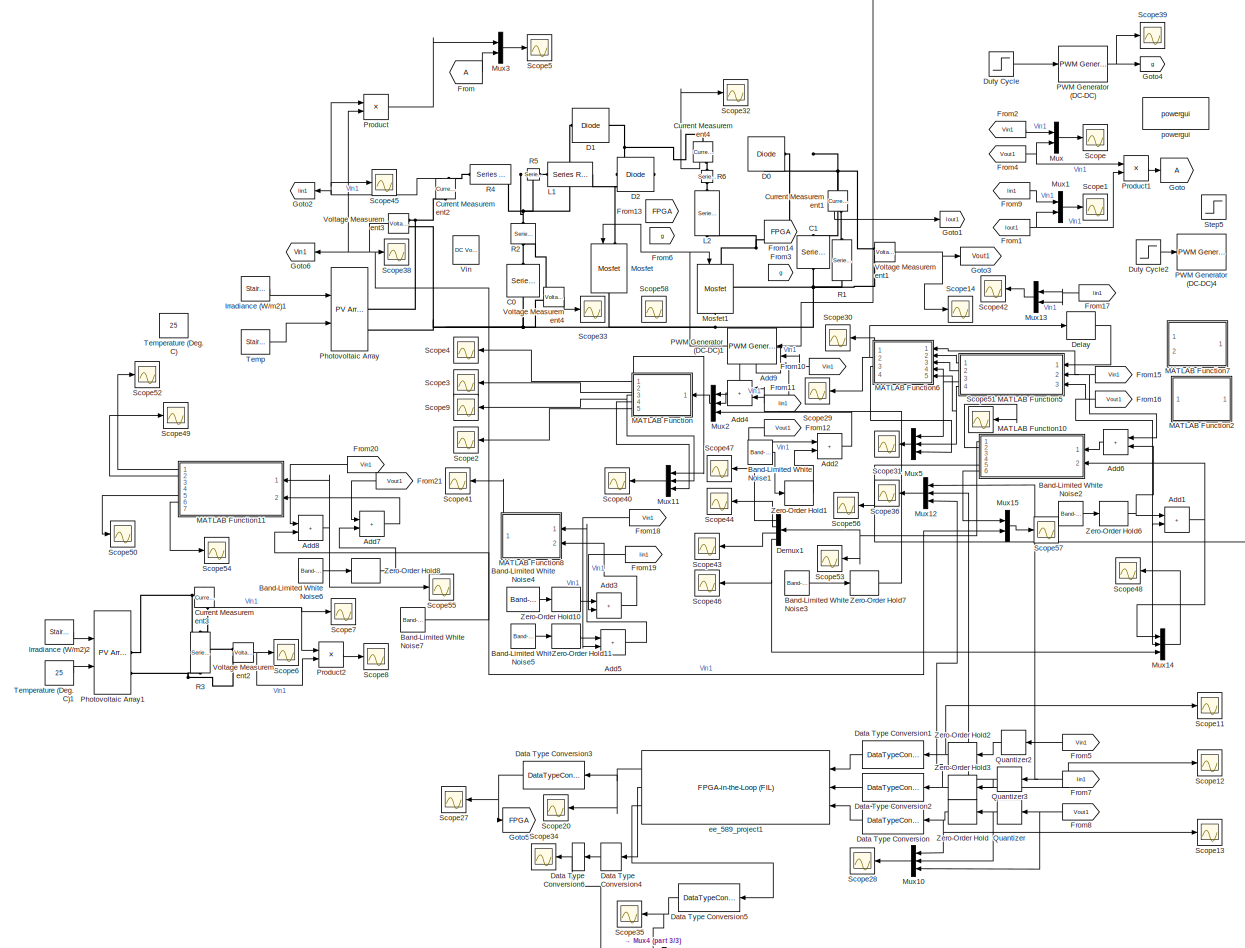
[diagram: root canvas - part 1/3, center side, full height]
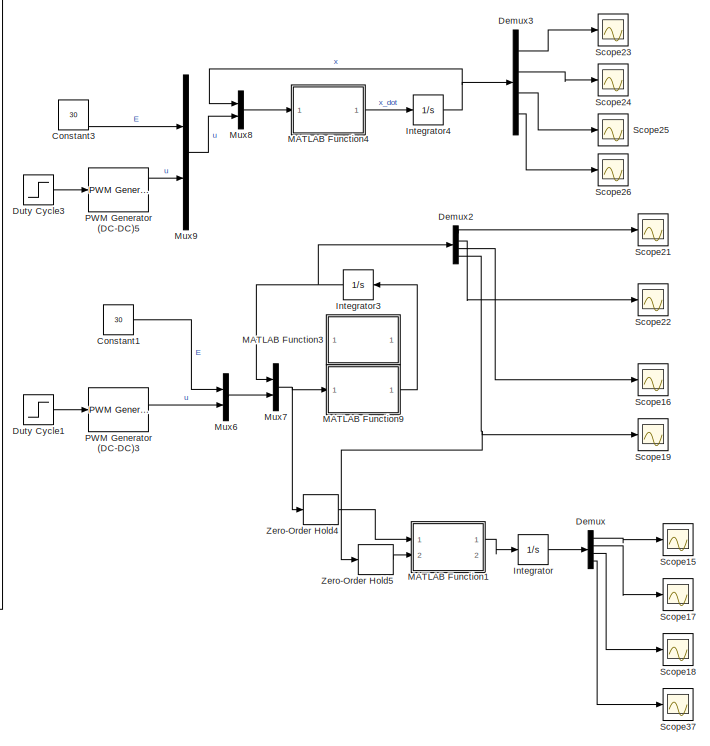
[diagram: root canvas - part 2/3, middle right region]
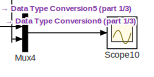
[diagram: root canvas - part 3/3, bottom center region]
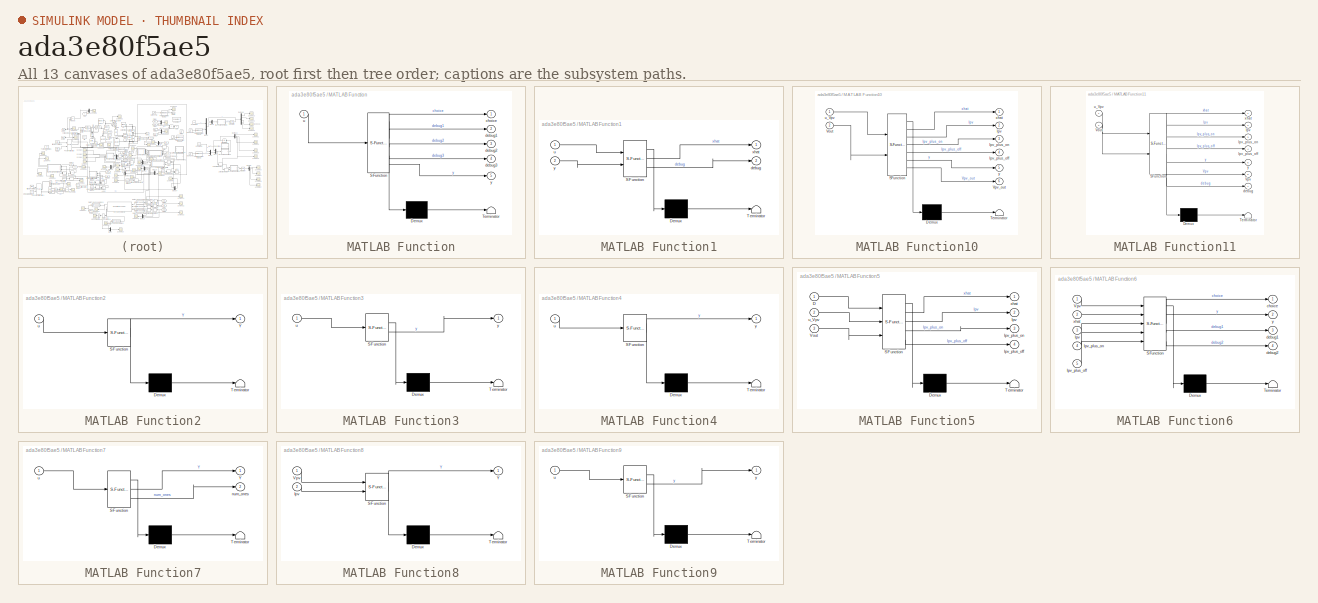
[diagram: thumbnail index - all 13 canvases of the model, root first then tree order]
MODEL slx_ada3e80f5ae5
KIND model
CONFIG AbsTol = auto
CONFIG EnableMultiTasking = off
CONFIG FixedStep = auto
CONFIG MaxStep = auto
CONFIG MinStep = auto
CONFIG RelTol = 1e-3
CONFIG SampleTimeConstraint = Unconstrained
CONFIG SolverName = VariableStepAuto
CONFIG StartTime = 0.0
CONFIG StopTime = 2
BLOCK [Reference]  Temp  REF=powerlib_meascontrol/Pulse & Signal
Generators/Stair
Generator
  NameLocation = top
  Ports = [0, 1]
  SourceBlock = powerlib_meascontrol/Pulse & Signal\nGenerators/Stair\nGenerator
  SourceProductBaseCode = PS
  SourceType = Stair Generator
BLOCK [Sum] Add1
  IconShape = rectangular
  Ports = [2, 1]
BLOCK [Sum] Add2
  IconShape = rectangular
  Ports = [2, 1]
BLOCK [Sum] Add3
  IconShape = rectangular
  Ports = [2, 1]
BLOCK [Sum] Add4
  IconShape = rectangular
  Ports = [2, 1]
BLOCK [Sum] Add5
  IconShape = rectangular
  Ports = [2, 1]
BLOCK [Sum] Add6
  IconShape = rectangular
  Ports = [2, 1]
BLOCK [Sum] Add7
  Commented = on
  IconShape = rectangular
  Ports = [2, 1]
BLOCK [Sum] Add8
  Commented = on
  IconShape = rectangular
  Ports = [2, 1]
BLOCK [Sum] Add9
  IconShape = rectangular
  Ports = [2, 1]
BLOCK [Reference] Band-Limited White Noise1  REF=simulink/Sources/Band-Limited
White Noise
  Ports = [0, 1]
  SourceBlock = simulink/Sources/Band-Limited\nWhite Noise
  SourceProductBaseCode = SL
  SourceType = Band-Limited White Noise.
BLOCK [Reference] Band-Limited White Noise2  REF=simulink/Sources/Band-Limited
White Noise
  Commented = on
  Ports = [0, 1]
  SourceBlock = simulink/Sources/Band-Limited\nWhite Noise
  SourceProductBaseCode = SL
  SourceType = Band-Limited White Noise.
BLOCK [Reference] Band-Limited White Noise3  REF=simulink/Sources/Band-Limited
White Noise
  Ports = [0, 1]
  SourceBlock = simulink/Sources/Band-Limited\nWhite Noise
  SourceProductBaseCode = SL
  SourceType = Band-Limited White Noise.
BLOCK [Reference] Band-Limited White Noise4  REF=simulink/Sources/Band-Limited
White Noise
  Ports = [0, 1]
  SourceBlock = simulink/Sources/Band-Limited\nWhite Noise
  SourceProductBaseCode = SL
  SourceType = Band-Limited White Noise.
BLOCK [Reference] Band-Limited White Noise5  REF=simulink/Sources/Band-Limited
White Noise
  Ports = [0, 1]
  SourceBlock = simulink/Sources/Band-Limited\nWhite Noise
  SourceProductBaseCode = SL
  SourceType = Band-Limited White Noise.
BLOCK [Reference] Band-Limited White Noise6  REF=simulink/Sources/Band-Limited
White Noise
  Commented = on
  Ports = [0, 1]
  SourceBlock = simulink/Sources/Band-Limited\nWhite Noise
  SourceProductBaseCode = SL
  SourceType = Band-Limited White Noise.
BLOCK [Reference] Band-Limited White Noise7  REF=simulink/Sources/Band-Limited
White Noise
  Commented = on
  Ports = [0, 1]
  SourceBlock = simulink/Sources/Band-Limited\nWhite Noise
  SourceProductBaseCode = SL
  SourceType = Band-Limited White Noise.
BLOCK [Reference] C0  REF=powerlib/Elements/Series RLC Branch
  NameLocation = left
  Ports = [0, 0, 0, 0, 0, 1, 1]
  SourceBlock = powerlib/Elements/Series RLC Branch
  SourceProductBaseCode = PS
  SourceType = Series RLC Branch
BLOCK [Reference] C1  REF=powerlib/Elements/Series RLC Branch
  NameLocation = left
  Ports = [0, 0, 0, 0, 0, 1, 1]
  SourceBlock = powerlib/Elements/Series RLC Branch
  SourceProductBaseCode = PS
  SourceType = Series RLC Branch
BLOCK [Constant] Constant1
  Commented = on
  Value = 30
BLOCK [Constant] Constant3
  Commented = on
  Value = 30
BLOCK [Reference] Current Measurement1  REF=powerlib/Measurements/Current Measurement
  NameLocation = right
  Ports = [0, 1, 0, 0, 0, 1, 1]
  SourceBlock = powerlib/Measurements/Current Measurement
  SourceProductBaseCode = PS
  SourceType = Current Measurement
  UserDataPersistent = on
BLOCK [Reference] Current Measurement2  REF=powerlib/Measurements/Current Measurement
  NameLocation = right
  Ports = [0, 1, 0, 0, 0, 1, 1]
  SourceBlock = powerlib/Measurements/Current Measurement
  SourceProductBaseCode = PS
  SourceType = Current Measurement
  UserDataPersistent = on
BLOCK [Reference] Current Measurement3  REF=powerlib/Measurements/Current Measurement
  Commented = on
  NameLocation = left
  Ports = [0, 1, 0, 0, 0, 1, 1]
  SourceBlock = powerlib/Measurements/Current Measurement
  SourceProductBaseCode = PS
  SourceType = Current Measurement
  UserDataPersistent = on
BLOCK [Reference] Current Measurement4  REF=powerlib/Measurements/Current Measurement
  NameLocation = right
  Ports = [0, 1, 0, 0, 0, 1, 1]
  SourceBlock = powerlib/Measurements/Current Measurement
  SourceProductBaseCode = PS
  SourceType = Current Measurement
  UserDataPersistent = on
BLOCK [Reference] D0  REF=powerlib/Power
Electronics/Diode
  Ports = [0, 0, 0, 0, 0, 1, 1]
  SourceBlock = powerlib/Power\nElectronics/Diode
  SourceProductBaseCode = PS
  SourceType = Diode
BLOCK [Reference] D1  REF=powerlib/Power
Electronics/Diode
  Ports = [0, 0, 0, 0, 0, 1, 1]
  SourceBlock = powerlib/Power\nElectronics/Diode
  SourceProductBaseCode = PS
  SourceType = Diode
BLOCK [Reference] D2  REF=powerlib/Power
Electronics/Diode
  Ports = [0, 0, 0, 0, 0, 1, 1]
  SourceBlock = powerlib/Power\nElectronics/Diode
  SourceProductBaseCode = PS
  SourceType = Diode
BLOCK [DataTypeConversion] Data Type Conversion
  Commented = on
  OutDataTypeStr = fixdt(1,32,16)
  RndMeth = Floor
  SaturateOnIntegerOverflow = off
BLOCK [DataTypeConversion] Data Type Conversion1
  Commented = on
  OutDataTypeStr = fixdt(1,32,16)
  RndMeth = Floor
  SaturateOnIntegerOverflow = off
BLOCK [DataTypeConversion] Data Type Conversion2
  Commented = on
  OutDataTypeStr = fixdt(1,32,16)
  RndMeth = Floor
  SaturateOnIntegerOverflow = off
BLOCK [DataTypeConversion] Data Type Conversion3
  Commented = on
  OutDataTypeStr = double
  RndMeth = Floor
  SaturateOnIntegerOverflow = off
BLOCK [DataTypeConversion] Data Type Conversion4
  Commented = on
  OutDataTypeStr = fixdt(1,32,16)
  RndMeth = Floor
  SaturateOnIntegerOverflow = off
BLOCK [DataTypeConversion] Data Type Conversion5
  Commented = on
  RndMeth = Floor
  SaturateOnIntegerOverflow = off
BLOCK [DataTypeConversion] Data Type Conversion6
  Commented = on
  OutDataTypeStr = double
  RndMeth = Floor
  SaturateOnIntegerOverflow = off
BLOCK [Delay] Delay
  DelayLength = 1
  InitialCondition = 0
  InputPortMap = u0
  Ports = [1, 1]
  SampleTime = 15e-6
BLOCK [Demux] Demux
  Commented = on
  Ports = [1, 4]
BLOCK [Demux] Demux1
  Ports = [1, 4]
BLOCK [Demux] Demux2
  Commented = on
  Ports = [1, 4]
BLOCK [Demux] Demux3
  Commented = on
  Ports = [1, 4]
BLOCK [Step] Duty Cycle
  After = .5
  Before = .5
  SampleTime = 0
  Time = .5
BLOCK [Step] Duty Cycle1
  After = .5
  Before = .5
  Commented = on
  SampleTime = 0
  Time = .5
BLOCK [Step] Duty Cycle2
  After = .5
  Before = .3
  SampleTime = 0
  Time = .1
BLOCK [Step] Duty Cycle3
  After = .5
  Before = .5
  Commented = on
  SampleTime = 0
  Time = .5
BLOCK [From] From
BLOCK [From] From1
  GotoTag = Iout1
BLOCK [From] From10
  GotoTag = Vin1
BLOCK [From] From11
  GotoTag = Iin1
BLOCK [From] From12
  GotoTag = Vout1
BLOCK [From] From13
  Commented = on
  GotoTag = FPGA
BLOCK [From] From14
  Commented = on
  GotoTag = FPGA
BLOCK [From] From15
  GotoTag = Vin1
BLOCK [From] From16
  GotoTag = Vout1
BLOCK [From] From17
  GotoTag = Iin1
BLOCK [From] From18
  GotoTag = Vin1
BLOCK [From] From19
  GotoTag = Iin1
BLOCK [From] From2
  GotoTag = Vin1
BLOCK [From] From20
  Commented = on
  GotoTag = Vin1
BLOCK [From] From21
  Commented = on
  GotoTag = Vout1
BLOCK [From] From3
  GotoTag = g
BLOCK [From] From4
  GotoTag = Vout1
BLOCK [From] From5
  Commented = on
  GotoTag = Vin1
BLOCK [From] From6
  GotoTag = g
BLOCK [From] From7
  Commented = on
  GotoTag = Iin1
BLOCK [From] From8
  Commented = on
  GotoTag = Vout1
BLOCK [From] From9
  GotoTag = Iin1
BLOCK [Goto] Goto
BLOCK [Goto] Goto1
  GotoTag = Iout1
BLOCK [Goto] Goto2
  GotoTag = Iin1
BLOCK [Goto] Goto3
  GotoTag = Vout1
BLOCK [Goto] Goto4
  GotoTag = g
BLOCK [Goto] Goto5
  Commented = on
  GotoTag = FPGA
BLOCK [Goto] Goto6
  GotoTag = Vin1
BLOCK [Integrator] Integrator
  Commented = on
  InitialCondition = [0 0 0 0]
  Ports = [1, 1]
BLOCK [Integrator] Integrator3
  Commented = on
  InitialCondition = [0 0 0 0]
  Ports = [1, 1]
BLOCK [Integrator] Integrator4
  Commented = on
  InitialCondition = zeros(4,1)
  Ports = [1, 1]
BLOCK [Reference] Irradiance (W//m2)1  REF=powerlib_meascontrol/Pulse & Signal
Generators/Stair
Generator
  NameLocation = top
  Ports = [0, 1]
  SourceBlock = powerlib_meascontrol/Pulse & Signal\nGenerators/Stair\nGenerator
  SourceProductBaseCode = PS
  SourceType = Stair Generator
BLOCK [Reference] Irradiance (W//m2)2  REF=powerlib_meascontrol/Pulse & Signal
Generators/Stair
Generator
  Commented = on
  NameLocation = top
  Ports = [0, 1]
  SourceBlock = powerlib_meascontrol/Pulse & Signal\nGenerators/Stair\nGenerator
  SourceProductBaseCode = PS
  SourceType = Stair Generator
BLOCK [Reference] L1  REF=powerlib/Elements/Series RLC Branch
  NameLocation = top
  Ports = [0, 0, 0, 0, 0, 1, 1]
  SourceBlock = powerlib/Elements/Series RLC Branch
  SourceProductBaseCode = PS
  SourceType = Series RLC Branch
BLOCK [Reference] L2  REF=powerlib/Elements/Series RLC Branch
  NameLocation = right
  Ports = [0, 0, 0, 0, 0, 1, 1]
  SourceBlock = powerlib/Elements/Series RLC Branch
  SourceProductBaseCode = PS
  SourceType = Series RLC Branch
BLOCK [SubSystem] MATLAB Function
  ErrorFcn = Stateflow.Translate.translate
  PermitHierarchicalResolution = ExplicitOnly
  Ports = [1, 5]
  RequestExecContextInheritance = off
  SFBlockType = MATLAB Function
  SystemSampleTime = 15e-6
  TreatAsAtomicUnit = on
BLOCK [Demux] MATLAB Function/ Demux 
  Outputs = 1
  Ports = [1, 1]
BLOCK [S-Function] MATLAB Function/ SFunction 
  EnableBusSupport = on
  FunctionName = sf_sfun
  PortCounts = [1 6]
  Ports = [1, 6]
  SFcnIsStateOwnerBlock = off
  SFunctionDeploymentMode = off
  Tag = Stateflow S-Function 2
BLOCK [Terminator] MATLAB Function/ Terminator 
BLOCK [Outport] MATLAB Function/choice
BLOCK [Outport] MATLAB Function/debug1
  Port = 2
BLOCK [Outport] MATLAB Function/debug2
  Port = 3
BLOCK [Outport] MATLAB Function/debug3
  Port = 4
BLOCK [Inport] MATLAB Function/u
BLOCK [Outport] MATLAB Function/y
  Port = 5
BLOCK [SubSystem] MATLAB Function1
  Commented = on
  ErrorFcn = Stateflow.Translate.translate
  PermitHierarchicalResolution = ExplicitOnly
  Ports = [2, 2]
  RequestExecContextInheritance = off
  SFBlockType = MATLAB Function
  TreatAsAtomicUnit = on
BLOCK [Demux] MATLAB Function1/ Demux 
  Outputs = 1
  Ports = [1, 1]
BLOCK [S-Function] MATLAB Function1/ SFunction 
  EnableBusSupport = on
  FunctionName = sf_sfun
  PortCounts = [2 3]
  Ports = [2, 3]
  SFcnIsStateOwnerBlock = off
  SFunctionDeploymentMode = off
  Tag = Stateflow S-Function 1
BLOCK [Terminator] MATLAB Function1/ Terminator 
BLOCK [Outport] MATLAB Function1/debug
  Port = 2
BLOCK [Inport] MATLAB Function1/u
BLOCK [Outport] MATLAB Function1/xhat
BLOCK [Inport] MATLAB Function1/y
  Port = 2
BLOCK [SubSystem] MATLAB Function10
  ErrorFcn = Stateflow.Translate.translate
  PermitHierarchicalResolution = ExplicitOnly
  Ports = [2, 6]
  RequestExecContextInheritance = off
  SFBlockType = MATLAB Function
  SystemSampleTime = 15e-6
  TreatAsAtomicUnit = on
BLOCK [Demux] MATLAB Function10/ Demux 
  Outputs = 1
  Ports = [1, 1]
BLOCK [S-Function] MATLAB Function10/ SFunction 
  EnableBusSupport = on
  FunctionName = sf_sfun
  PortCounts = [2 7]
  Ports = [2, 7]
  SFcnIsStateOwnerBlock = off
  SFunctionDeploymentMode = off
  Tag = Stateflow S-Function 11
BLOCK [Terminator] MATLAB Function10/ Terminator 
BLOCK [Outport] MATLAB Function10/Ipv
  Port = 2
BLOCK [Outport] MATLAB Function10/Ipv_plus_off
  Port = 4
BLOCK [Outport] MATLAB Function10/Ipv_plus_on
  Port = 3
BLOCK [Inport] MATLAB Function10/Vout
  Port = 2
BLOCK [Outport] MATLAB Function10/Vpv_out
  Port = 6
BLOCK [Inport] MATLAB Function10/u_Vpv
BLOCK [Outport] MATLAB Function10/xhat
BLOCK [Outport] MATLAB Function10/y
  Port = 5
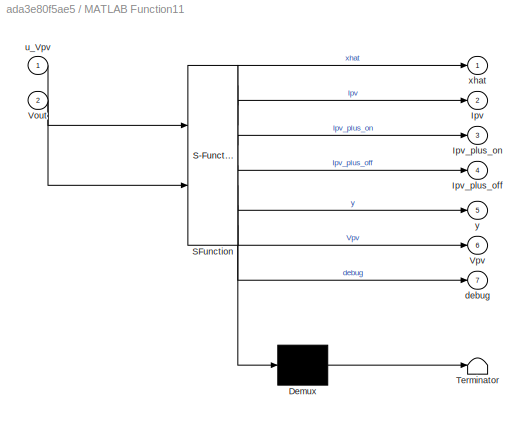
BLOCK [SubSystem] MATLAB Function11
  Commented = on
  ErrorFcn = Stateflow.Translate.translate
  PermitHierarchicalResolution = ExplicitOnly
  Ports = [2, 7]
  RequestExecContextInheritance = off
  SFBlockType = MATLAB Function
  SystemSampleTime = 15e-6
  TreatAsAtomicUnit = on
BLOCK [Demux] MATLAB Function11/ Demux 
  Outputs = 1
  Ports = [1, 1]
BLOCK [S-Function] MATLAB Function11/ SFunction 
  EnableBusSupport = on
  FunctionName = sf_sfun
  PortCounts = [2 8]
  Ports = [2, 8]
  SFcnIsStateOwnerBlock = off
  SFunctionDeploymentMode = off
  Tag = Stateflow S-Function 12
BLOCK [Terminator] MATLAB Function11/ Terminator 
BLOCK [Outport] MATLAB Function11/Ipv
  Port = 2
BLOCK [Outport] MATLAB Function11/Ipv_plus_off
  Port = 4
BLOCK [Outport] MATLAB Function11/Ipv_plus_on
  Port = 3
BLOCK [Inport] MATLAB Function11/Vout
  Port = 2
BLOCK [Outport] MATLAB Function11/Vpv
  Port = 6
BLOCK [Outport] MATLAB Function11/debug
  Port = 7
BLOCK [Inport] MATLAB Function11/u_Vpv
BLOCK [Outport] MATLAB Function11/xhat
BLOCK [Outport] MATLAB Function11/y
  Port = 5
BLOCK [SubSystem] MATLAB Function2
  Commented = on
  ErrorFcn = Stateflow.Translate.translate
  PermitHierarchicalResolution = ExplicitOnly
  Ports = [1, 1]
  RequestExecContextInheritance = off
  SFBlockType = MATLAB Function
  SystemSampleTime = 15e-6
  TreatAsAtomicUnit = on
BLOCK [Demux] MATLAB Function2/ Demux 
  Outputs = 1
  Ports = [1, 1]
BLOCK [S-Function] MATLAB Function2/ SFunction 
  EnableBusSupport = on
  FunctionName = sf_sfun
  PortCounts = [1 2]
  Ports = [1, 2]
  SFcnIsStateOwnerBlock = off
  SFunctionDeploymentMode = off
  Tag = Stateflow S-Function 3
BLOCK [Terminator] MATLAB Function2/ Terminator 
BLOCK [Outport] MATLAB Function2/Y
BLOCK [Inport] MATLAB Function2/u
BLOCK [SubSystem] MATLAB Function3
  Commented = on
  ErrorFcn = Stateflow.Translate.translate
  PermitHierarchicalResolution = ExplicitOnly
  Ports = [1, 1]
  RequestExecContextInheritance = off
  SFBlockType = MATLAB Function
  TreatAsAtomicUnit = on
BLOCK [Demux] MATLAB Function3/ Demux 
  Outputs = 1
  Ports = [1, 1]
BLOCK [S-Function] MATLAB Function3/ SFunction 
  EnableBusSupport = on
  FunctionName = sf_sfun
  PortCounts = [1 2]
  Ports = [1, 2]
  SFcnIsStateOwnerBlock = off
  SFunctionDeploymentMode = off
  Tag = Stateflow S-Function 4
BLOCK [Terminator] MATLAB Function3/ Terminator 
BLOCK [Inport] MATLAB Function3/u
BLOCK [Outport] MATLAB Function3/y
BLOCK [SubSystem] MATLAB Function4
  Commented = on
  ErrorFcn = Stateflow.Translate.translate
  PermitHierarchicalResolution = ExplicitOnly
  Ports = [1, 1]
  RequestExecContextInheritance = off
  SFBlockType = MATLAB Function
  TreatAsAtomicUnit = on
BLOCK [Demux] MATLAB Function4/ Demux 
  Outputs = 1
  Ports = [1, 1]
BLOCK [S-Function] MATLAB Function4/ SFunction 
  EnableBusSupport = on
  FunctionName = sf_sfun
  PortCounts = [1 2]
  Ports = [1, 2]
  SFcnIsStateOwnerBlock = off
  SFunctionDeploymentMode = off
  Tag = Stateflow S-Function 5
BLOCK [Terminator] MATLAB Function4/ Terminator 
BLOCK [Inport] MATLAB Function4/u
BLOCK [Outport] MATLAB Function4/y
BLOCK [SubSystem] MATLAB Function5
  ErrorFcn = Stateflow.Translate.translate
  PermitHierarchicalResolution = ExplicitOnly
  Ports = [3, 4]
  RequestExecContextInheritance = off
  SFBlockType = MATLAB Function
  SystemSampleTime = 15e-6
  TreatAsAtomicUnit = on
BLOCK [Demux] MATLAB Function5/ Demux 
  Outputs = 1
  Ports = [1, 1]
BLOCK [S-Function] MATLAB Function5/ SFunction 
  EnableBusSupport = on
  FunctionName = sf_sfun
  PortCounts = [3 5]
  Ports = [3, 5]
  SFcnIsStateOwnerBlock = off
  SFunctionDeploymentMode = off
  Tag = Stateflow S-Function 6
BLOCK [Terminator] MATLAB Function5/ Terminator 
BLOCK [Inport] MATLAB Function5/D
BLOCK [Outport] MATLAB Function5/Ipv
  Port = 2
BLOCK [Outport] MATLAB Function5/Ipv_plus_off
  Port = 4
BLOCK [Outport] MATLAB Function5/Ipv_plus_on
  Port = 3
BLOCK [Inport] MATLAB Function5/Vout
  Port = 3
BLOCK [Inport] MATLAB Function5/u_Vpv
  Port = 2
BLOCK [Outport] MATLAB Function5/xhat
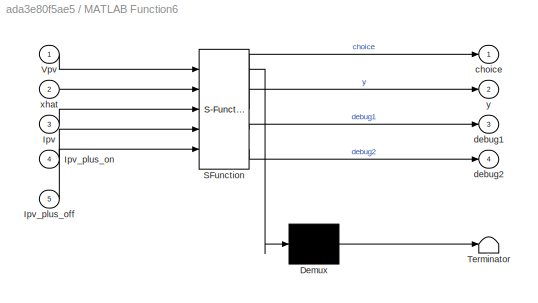
BLOCK [SubSystem] MATLAB Function6
  ErrorFcn = Stateflow.Translate.translate
  PermitHierarchicalResolution = ExplicitOnly
  Ports = [5, 4]
  RequestExecContextInheritance = off
  SFBlockType = MATLAB Function
  SystemSampleTime = 15e-6
  TreatAsAtomicUnit = on
BLOCK [Demux] MATLAB Function6/ Demux 
  Outputs = 1
  Ports = [1, 1]
BLOCK [S-Function] MATLAB Function6/ SFunction 
  EnableBusSupport = on
  FunctionName = sf_sfun
  PortCounts = [5 5]
  Ports = [5, 5]
  SFcnIsStateOwnerBlock = off
  SFunctionDeploymentMode = off
  Tag = Stateflow S-Function 7
BLOCK [Terminator] MATLAB Function6/ Terminator 
BLOCK [Inport] MATLAB Function6/Ipv
  Port = 3
BLOCK [Inport] MATLAB Function6/Ipv_plus_off
  Port = 5
BLOCK [Inport] MATLAB Function6/Ipv_plus_on
  Port = 4
BLOCK [Inport] MATLAB Function6/Vpv
BLOCK [Outport] MATLAB Function6/choice
BLOCK [Outport] MATLAB Function6/debug1
  Port = 3
BLOCK [Outport] MATLAB Function6/debug2
  Port = 4
BLOCK [Inport] MATLAB Function6/xhat
  Port = 2
BLOCK [Outport] MATLAB Function6/y
  Port = 2
BLOCK [SubSystem] MATLAB Function7
  Commented = on
  ErrorFcn = Stateflow.Translate.translate
  PermitHierarchicalResolution = ExplicitOnly
  Ports = [1, 2]
  RequestExecContextInheritance = off
  SFBlockType = MATLAB Function
  SystemSampleTime = 15e-6
  TreatAsAtomicUnit = on
BLOCK [Demux] MATLAB Function7/ Demux 
  Outputs = 1
  Ports = [1, 1]
BLOCK [S-Function] MATLAB Function7/ SFunction 
  EnableBusSupport = on
  FunctionName = sf_sfun
  PortCounts = [1 3]
  Ports = [1, 3]
  SFcnIsStateOwnerBlock = off
  SFunctionDeploymentMode = off
  Tag = Stateflow S-Function 8
BLOCK [Terminator] MATLAB Function7/ Terminator 
BLOCK [Outport] MATLAB Function7/Y
BLOCK [Outport] MATLAB Function7/num_ones
  Port = 2
BLOCK [Inport] MATLAB Function7/u
BLOCK [SubSystem] MATLAB Function8
  ErrorFcn = Stateflow.Translate.translate
  PermitHierarchicalResolution = ExplicitOnly
  Ports = [2, 1]
  RequestExecContextInheritance = off
  SFBlockType = MATLAB Function
  SystemSampleTime = 15e-6
  TreatAsAtomicUnit = on
BLOCK [Demux] MATLAB Function8/ Demux 
  Outputs = 1
  Ports = [1, 1]
BLOCK [S-Function] MATLAB Function8/ SFunction 
  EnableBusSupport = on
  FunctionName = sf_sfun
  PortCounts = [2 2]
  Ports = [2, 2]
  SFcnIsStateOwnerBlock = off
  SFunctionDeploymentMode = off
  Tag = Stateflow S-Function 9
BLOCK [Terminator] MATLAB Function8/ Terminator 
BLOCK [Inport] MATLAB Function8/Ipv
  Port = 2
BLOCK [Inport] MATLAB Function8/Vpv
BLOCK [Outport] MATLAB Function8/Y
BLOCK [SubSystem] MATLAB Function9
  Commented = on
  ErrorFcn = Stateflow.Translate.translate
  PermitHierarchicalResolution = ExplicitOnly
  Ports = [1, 1]
  RequestExecContextInheritance = off
  SFBlockType = MATLAB Function
  TreatAsAtomicUnit = on
BLOCK [Demux] MATLAB Function9/ Demux 
  Outputs = 1
  Ports = [1, 1]
BLOCK [S-Function] MATLAB Function9/ SFunction 
  EnableBusSupport = on
  FunctionName = sf_sfun
  PortCounts = [1 2]
  Ports = [1, 2]
  SFcnIsStateOwnerBlock = off
  SFunctionDeploymentMode = off
  Tag = Stateflow S-Function 10
BLOCK [Terminator] MATLAB Function9/ Terminator 
BLOCK [Inport] MATLAB Function9/u
BLOCK [Outport] MATLAB Function9/y
BLOCK [Reference] Mosfet  REF=powerlib/Power
Electronics/Mosfet
  NameLocation = left
  Ports = [1, 0, 0, 0, 0, 1, 1]
  SourceBlock = powerlib/Power\nElectronics/Mosfet
  SourceProductBaseCode = PS
  SourceType = Mosfet
BLOCK [Reference] Mosfet1  REF=powerlib/Power
Electronics/Mosfet
  NameLocation = left
  Ports = [1, 0, 0, 0, 0, 1, 1]
  SourceBlock = powerlib/Power\nElectronics/Mosfet
  SourceProductBaseCode = PS
  SourceType = Mosfet
BLOCK [Mux] Mux
  DisplayOption = bar
  Inputs = 2
  Ports = [2, 1]
BLOCK [Mux] Mux1
  DisplayOption = bar
  Inputs = 2
  Ports = [2, 1]
BLOCK [Mux] Mux10
  Commented = on
  DisplayOption = bar
  Inputs = 3
  Ports = [3, 1]
BLOCK [Mux] Mux11
  DisplayOption = bar
  Inputs = 3
  Ports = [3, 1]
BLOCK [Mux] Mux12
  DisplayOption = bar
  Inputs = 3
  Ports = [3, 1]
BLOCK [Mux] Mux13
  DisplayOption = bar
  Inputs = 2
  Ports = [2, 1]
BLOCK [Mux] Mux14
  DisplayOption = bar
  Inputs = 3
  Ports = [3, 1]
BLOCK [Mux] Mux15
  DisplayOption = bar
  Inputs = 2
  Ports = [2, 1]
BLOCK [Mux] Mux2
  DisplayOption = bar
  Inputs = 3
  Ports = [3, 1]
BLOCK [Mux] Mux3
  DisplayOption = bar
  Inputs = 2
  Ports = [2, 1]
BLOCK [Mux] Mux4
  Commented = on
  DisplayOption = bar
  Inputs = 2
  Ports = [2, 1]
BLOCK [Mux] Mux5
  DisplayOption = bar
  Inputs = 3
  Ports = [3, 1]
BLOCK [Mux] Mux6
  Commented = on
  DisplayOption = bar
  Inputs = 2
  Ports = [2, 1]
BLOCK [Mux] Mux7
  Commented = on
  DisplayOption = bar
  Inputs = 2
  Ports = [2, 1]
BLOCK [Mux] Mux8
  Commented = on
  DisplayOption = bar
  Inputs = 2
  Ports = [2, 1]
BLOCK [Mux] Mux9
  Commented = on
  DisplayOption = bar
  Inputs = 2
  Ports = [2, 1]
BLOCK [Reference] PWM Generator (DC-DC)  REF=powerlib_meascontrol/Pulse & Signal
Generators/PWM Generator
(DC-DC)
  NameLocation = top
  Ports = [1, 1]
  SourceBlock = powerlib_meascontrol/Pulse & Signal\nGenerators/PWM Generator\n(DC-DC)
  SourceProductBaseCode = PS
  SourceType = PWM Generator (DC-DC)
BLOCK [Reference] PWM Generator (DC-DC)1  REF=powerlib_meascontrol/Pulse & Signal
Generators/PWM Generator
(DC-DC)
  NameLocation = top
  Ports = [1, 1]
  SourceBlock = powerlib_meascontrol/Pulse & Signal\nGenerators/PWM Generator\n(DC-DC)
  SourceProductBaseCode = PS
  SourceType = PWM Generator (DC-DC)
BLOCK [Reference] PWM Generator (DC-DC)3  REF=powerlib_meascontrol/Pulse & Signal
Generators/PWM Generator
(DC-DC)
  Commented = on
  NameLocation = top
  Ports = [1, 1]
  SourceBlock = powerlib_meascontrol/Pulse & Signal\nGenerators/PWM Generator\n(DC-DC)
  SourceProductBaseCode = PS
  SourceType = PWM Generator (DC-DC)
BLOCK [Reference] PWM Generator (DC-DC)4  REF=powerlib_meascontrol/Pulse & Signal
Generators/PWM Generator
(DC-DC)
  NameLocation = top
  Ports = [1, 1]
  SourceBlock = powerlib_meascontrol/Pulse & Signal\nGenerators/PWM Generator\n(DC-DC)
  SourceProductBaseCode = PS
  SourceType = PWM Generator (DC-DC)
BLOCK [Reference] PWM Generator (DC-DC)5  REF=powerlib_meascontrol/Pulse & Signal
Generators/PWM Generator
(DC-DC)
  Commented = on
  NameLocation = top
  Ports = [1, 1]
  SourceBlock = powerlib_meascontrol/Pulse & Signal\nGenerators/PWM Generator\n(DC-DC)
  SourceProductBaseCode = PS
  SourceType = PWM Generator (DC-DC)
BLOCK [Reference] Photovoltaic Array  REF=re_lib/Solar/PV Array
  AttributesFormatString = %<ModuleName>\n%<Nser>-module string\n%<Npar> parallel strings
  Ports = [2, 1, 0, 0, 0, 0, 2]
  SourceBlock = re_lib/Solar/PV Array
  SourceProductBaseCode = PS
  SourceType = PV array
BLOCK [Reference] Photovoltaic Array1  REF=re_lib/Solar/PV Array
  AttributesFormatString = %<ModuleName>\n%<Nser>-module string\n%<Npar> parallel strings
  Commented = on
  Ports = [2, 1, 0, 0, 0, 0, 2]
  SourceBlock = re_lib/Solar/PV Array
  SourceProductBaseCode = PS
  SourceType = PV array
BLOCK [Product] Product
  Ports = [2, 1]
BLOCK [Product] Product1
  Ports = [2, 1]
BLOCK [Product] Product2
  Commented = on
  Ports = [2, 1]
BLOCK [Quantizer] Quantizer
  Commented = on
  QuantizationInterval = 15e-6
BLOCK [Quantizer] Quantizer2
  Commented = on
  QuantizationInterval = 15e-6
BLOCK [Quantizer] Quantizer3
  Commented = on
  QuantizationInterval = 15e-6
BLOCK [Reference] R1  REF=powerlib/Elements/Series RLC Branch
  NameLocation = left
  Ports = [0, 0, 0, 0, 0, 1, 1]
  SourceBlock = powerlib/Elements/Series RLC Branch
  SourceProductBaseCode = PS
  SourceType = Series RLC Branch
BLOCK [Reference] R2  REF=powerlib/Elements/Series RLC Branch
  NameLocation = left
  Ports = [0, 0, 0, 0, 0, 1, 1]
  SourceBlock = powerlib/Elements/Series RLC Branch
  SourceProductBaseCode = PS
  SourceType = Series RLC Branch
BLOCK [Reference] R3  REF=powerlib/Elements/Series RLC Branch
  Commented = on
  NameLocation = left
  Ports = [0, 0, 0, 0, 0, 1, 1]
  SourceBlock = powerlib/Elements/Series RLC Branch
  SourceProductBaseCode = PS
  SourceType = Series RLC Branch
BLOCK [Reference] R4  REF=powerlib/Elements/Series RLC Branch
  Ports = [0, 0, 0, 0, 0, 1, 1]
  SourceBlock = powerlib/Elements/Series RLC Branch
  SourceProductBaseCode = PS
  SourceType = Series RLC Branch
BLOCK [Reference] R5  REF=powerlib/Elements/Series RLC Branch
  Ports = [0, 0, 0, 0, 0, 1, 1]
  SourceBlock = powerlib/Elements/Series RLC Branch
  SourceProductBaseCode = PS
  SourceType = Series RLC Branch
BLOCK [Reference] R6  REF=powerlib/Elements/Series RLC Branch
  NameLocation = left
  Ports = [0, 0, 0, 0, 0, 1, 1]
  SourceBlock = powerlib/Elements/Series RLC Branch
  SourceProductBaseCode = PS
  SourceType = Series RLC Branch
BLOCK [Scope] Scope
  Floating = off
  NumInputPorts = 1
  Ports = [1]
  ScopeSpecificationString = Simulink.scopes.TimeScopeBlockCfg('CurrentConfiguration', extmgr.ConfigurationSet(extmgr.Configuration('Core','General UI',true),extmgr.Configuration('Core','Source UI',true),extmgr.Configuration('Sources','WiredSimulink',true,'DataLogging',true,'DataLoggingVariableName','voltage','DataLoggingSaveFormat','Array'),extmgr.Configuration('Visuals','Time Domain',true,'SerializedDisplays',{struct('MinYL...<+1497ch>
BLOCK [Scope] Scope1
  Floating = off
  NumInputPorts = 1
  Ports = [1]
  ScopeSpecificationString = Simulink.scopes.TimeScopeBlockCfg('CurrentConfiguration', extmgr.ConfigurationSet(extmgr.Configuration('Core','General UI',true),extmgr.Configuration('Core','Source UI',true),extmgr.Configuration('Sources','WiredSimulink',true,'DataLoggingVariableName','current','DataLogging',true,'DataLoggingSaveFormat','Array'),extmgr.Configuration('Visuals','Time Domain',true,'SerializedDisplays',{struct('MinYL...<+1489ch>
BLOCK [Scope] Scope10
  Commented = on
  Floating = off
  NumInputPorts = 1
  Ports = [1]
  ScopeSpecificationString = Simulink.scopes.TimeScopeBlockCfg('CurrentConfiguration', extmgr.ConfigurationSet(extmgr.Configuration('Core','General UI',true),extmgr.Configuration('Core','Source UI',true),extmgr.Configuration('Sources','WiredSimulink',true,'DataLoggingVariableName','ScopeData1'),extmgr.Configuration('Visuals','Time Domain',true,'SerializedDisplays',{struct('MinYLimReal','-9.81193','MaxYLimReal','88.30733','YLa...<+1481ch>
BLOCK [Scope] Scope11
  Commented = on
  Floating = off
  NumInputPorts = 1
  Ports = [1]
  ScopeSpecificationString = Simulink.scopes.TimeScopeBlockCfg('CurrentConfiguration', extmgr.ConfigurationSet(extmgr.Configuration('Core','General UI',true),extmgr.Configuration('Core','Source UI',true),extmgr.Configuration('Sources','WiredSimulink',true,'DataLoggingVariableName','Vpv','DataLogging',true,'DataLoggingSaveFormat','Array'),extmgr.Configuration('Visuals','Time Domain',true,'SerializedDisplays',{struct('MinYLimRe...<+1446ch>
BLOCK [Scope] Scope12
  Commented = on
  Floating = off
  NumInputPorts = 1
  Ports = [1]
  ScopeSpecificationString = Simulink.scopes.TimeScopeBlockCfg('CurrentConfiguration', extmgr.ConfigurationSet(extmgr.Configuration('Core','General UI',true),extmgr.Configuration('Core','Source UI',true),extmgr.Configuration('Sources','WiredSimulink',true,'DataLoggingVariableName','Ipv','DataLogging',true,'DataLoggingSaveFormat','Array'),extmgr.Configuration('Visuals','Time Domain',true,'SerializedDisplays',{struct('MinYLimRe...<+1417ch>
BLOCK [Scope] Scope13
  Commented = on
  Floating = off
  NumInputPorts = 1
  Ports = [1]
  ScopeSpecificationString = Simulink.scopes.TimeScopeBlockCfg('CurrentConfiguration', extmgr.ConfigurationSet(extmgr.Configuration('Core','General UI',true),extmgr.Configuration('Core','Source UI',true),extmgr.Configuration('Sources','WiredSimulink',true,'DataLoggingVariableName','Vout','DataLogging',true,'DataLoggingSaveFormat','Array'),extmgr.Configuration('Visuals','Time Domain',true,'SerializedDisplays',{struct('MinYLimR...<+1454ch>
BLOCK [Scope] Scope14
  Floating = off
  NumInputPorts = 1
  Ports = [1]
  ScopeSpecificationString = Simulink.scopes.TimeScopeBlockCfg('CurrentConfiguration', extmgr.ConfigurationSet(extmgr.Configuration('Core','General UI',true),extmgr.Configuration('Core','Source UI',true),extmgr.Configuration('Sources','WiredSimulink',true,'DataLoggingVariableName','ScopeData1'),extmgr.Configuration('Visuals','Time Domain',true,'SerializedDisplays',{struct('MinYLimReal','125.30704','MaxYLimReal','125.59168','Y...<+1489ch>
BLOCK [Scope] Scope15
  Commented = on
  Floating = off
  NumInputPorts = 1
  Ports = [1]
  ScopeSpecificationString = Simulink.scopes.TimeScopeBlockCfg('CurrentConfiguration', extmgr.ConfigurationSet(extmgr.Configuration('Core','General UI',true),extmgr.Configuration('Core','Source UI',true),extmgr.Configuration('Sources','WiredSimulink',true,'DataLoggingVariableName','ScopeData2'),extmgr.Configuration('Visuals','Time Domain',true,'SerializedDisplays',{struct('MinYLimReal','-1.00000','MaxYLimReal','1.00000','YLab...<+1499ch>
BLOCK [Scope] Scope16
  Commented = on
  Floating = off
  NumInputPorts = 1
  Ports = [1]
  ScopeSpecificationString = Simulink.scopes.TimeScopeBlockCfg('CurrentConfiguration', extmgr.ConfigurationSet(extmgr.Configuration('Core','General UI',true),extmgr.Configuration('Core','Source UI',true),extmgr.Configuration('Sources','WiredSimulink',true,'DataLoggingVariableName','ScopeData8'),extmgr.Configuration('Visuals','Time Domain',true,'SerializedDisplays',{struct('MinYLimReal','-0.95767','MaxYLimReal','8.61907','YLab...<+1438ch>
BLOCK [Scope] Scope17
  Commented = on
  Floating = off
  NumInputPorts = 1
  Ports = [1]
  ScopeSpecificationString = Simulink.scopes.TimeScopeBlockCfg('CurrentConfiguration', extmgr.ConfigurationSet(extmgr.Configuration('Core','General UI',true),extmgr.Configuration('Core','Source UI',true),extmgr.Configuration('Sources','WiredSimulink',true,'DataLoggingVariableName','ScopeData3'),extmgr.Configuration('Visuals','Time Domain',true,'SerializedDisplays',{struct('MinYLimReal','-16968703394718037894350561505375674958...<+2708ch>
BLOCK [Scope] Scope18
  Commented = on
  Floating = off
  NumInputPorts = 1
  Ports = [1]
  ScopeSpecificationString = Simulink.scopes.TimeScopeBlockCfg('CurrentConfiguration', extmgr.ConfigurationSet(extmgr.Configuration('Core','General UI',true),extmgr.Configuration('Core','Source UI',true),extmgr.Configuration('Sources','WiredSimulink',true,'DataLoggingVariableName','ScopeData4'),extmgr.Configuration('Visuals','Time Domain',true,'SerializedDisplays',{struct('MinYLimReal','-53175173325839605486547173950598443860...<+2730ch>
BLOCK [Scope] Scope19
  Commented = on
  Floating = off
  NumInputPorts = 1
  Ports = [1]
  ScopeSpecificationString = Simulink.scopes.TimeScopeBlockCfg('CurrentConfiguration', extmgr.ConfigurationSet(extmgr.Configuration('Core','General UI',true),extmgr.Configuration('Core','Source UI',true),extmgr.Configuration('Sources','WiredSimulink',true,'DataLoggingVariableName','ScopeData11'),extmgr.Configuration('Visuals','Time Domain',true,'SerializedDisplays',{struct('MinYLimReal','-9.62774','MaxYLimReal','86.64963','YL...<+1470ch>
BLOCK [Scope] Scope2
  Floating = off
  NumInputPorts = 1
  Ports = [1]
  ScopeSpecificationString = Simulink.scopes.TimeScopeBlockCfg('CurrentConfiguration', extmgr.ConfigurationSet(extmgr.Configuration('Core','General UI',true),extmgr.Configuration('Core','Source UI',true),extmgr.Configuration('Sources','WiredSimulink',true,'DataLoggingVariableName','ScopeData2'),extmgr.Configuration('Visuals','Time Domain',true,'SerializedDisplays',{struct('MinYLimReal','-0.125','MaxYLimReal','1.125','YLabelRe...<+1408ch>
BLOCK [Scope] Scope20
  Commented = on
  Floating = off
  NumInputPorts = 1
  Ports = [1]
  ScopeSpecificationString = Simulink.scopes.TimeScopeBlockCfg('CurrentConfiguration', extmgr.ConfigurationSet(extmgr.Configuration('Core','General UI',true),extmgr.Configuration('Core','Source UI',true),extmgr.Configuration('Sources','WiredSimulink',true,'DataLoggingVariableName','ScopeData12'),extmgr.Configuration('Visuals','Time Domain',true,'SerializedDisplays',{struct('MinYLimReal','-0.125','MaxYLimReal','1.125','YLabelR...<+1472ch>
BLOCK [Scope] Scope21
  Commented = on
  Floating = off
  NumInputPorts = 1
  Ports = [1]
  ScopeSpecificationString = Simulink.scopes.TimeScopeBlockCfg('CurrentConfiguration', extmgr.ConfigurationSet(extmgr.Configuration('Core','General UI',true),extmgr.Configuration('Core','Source UI',true),extmgr.Configuration('Sources','WiredSimulink',true,'DataLoggingVariableName','ScopeData13'),extmgr.Configuration('Visuals','Time Domain',true,'SerializedDisplays',{struct('MinYLimReal','24.98973','MaxYLimReal','30.61538','YL...<+1472ch>
BLOCK [Scope] Scope22
  Commented = on
  Floating = off
  NumInputPorts = 1
  Ports = [1]
  ScopeSpecificationString = Simulink.scopes.TimeScopeBlockCfg('CurrentConfiguration', extmgr.ConfigurationSet(extmgr.Configuration('Core','General UI',true),extmgr.Configuration('Core','Source UI',true),extmgr.Configuration('Sources','WiredSimulink',true,'DataLoggingVariableName','ScopeData14'),extmgr.Configuration('Visuals','Time Domain',true,'SerializedDisplays',{struct('MinYLimReal','-0.95767','MaxYLimReal','8.61906','YLa...<+1472ch>
BLOCK [Scope] Scope23
  Commented = on
  Floating = off
  NumInputPorts = 1
  Ports = [1]
  ScopeSpecificationString = Simulink.scopes.TimeScopeBlockCfg('CurrentConfiguration', extmgr.ConfigurationSet(extmgr.Configuration('Core','General UI',true),extmgr.Configuration('Core','Source UI',true),extmgr.Configuration('Sources','WiredSimulink',true,'DataLoggingVariableName','ScopeData15'),extmgr.Configuration('Visuals','Time Domain',true,'SerializedDisplays',{struct('MinYLimReal','24.26954','MaxYLimReal','29.36023','YL...<+1480ch>
BLOCK [Scope] Scope24
  Commented = on
  Floating = off
  NumInputPorts = 1
  Ports = [1]
  ScopeSpecificationString = Simulink.scopes.TimeScopeBlockCfg('CurrentConfiguration', extmgr.ConfigurationSet(extmgr.Configuration('Core','General UI',true),extmgr.Configuration('Core','Source UI',true),extmgr.Configuration('Sources','WiredSimulink',true,'DataLoggingVariableName','ScopeData16'),extmgr.Configuration('Visuals','Time Domain',true,'SerializedDisplays',{struct('MinYLimReal','-0.95595','MaxYLimReal','8.60356','YLa...<+1476ch>
BLOCK [Scope] Scope25
  Commented = on
  Floating = off
  NumInputPorts = 1
  Ports = [1]
  ScopeSpecificationString = Simulink.scopes.TimeScopeBlockCfg('CurrentConfiguration', extmgr.ConfigurationSet(extmgr.Configuration('Core','General UI',true),extmgr.Configuration('Core','Source UI',true),extmgr.Configuration('Sources','WiredSimulink',true,'DataLoggingVariableName','ScopeData17'),extmgr.Configuration('Visuals','Time Domain',true,'SerializedDisplays',{struct('MinYLimReal','-0.95595','MaxYLimReal','8.60356','YLa...<+1439ch>
BLOCK [Scope] Scope26
  Commented = on
  Floating = off
  NumInputPorts = 1
  Ports = [1]
  ScopeSpecificationString = Simulink.scopes.TimeScopeBlockCfg('CurrentConfiguration', extmgr.ConfigurationSet(extmgr.Configuration('Core','General UI',true),extmgr.Configuration('Core','Source UI',true),extmgr.Configuration('Sources','WiredSimulink',true,'DataLoggingVariableName','ScopeData18'),extmgr.Configuration('Visuals','Time Domain',true,'SerializedDisplays',{struct('MinYLimReal','-9.62636','MaxYLimReal','86.63725','YL...<+1478ch>
BLOCK [Scope] Scope27
  Commented = on
  Floating = off
  NumInputPorts = 1
  Ports = [1]
  ScopeSpecificationString = Simulink.scopes.TimeScopeBlockCfg('CurrentConfiguration', extmgr.ConfigurationSet(extmgr.Configuration('Core','General UI',true),extmgr.Configuration('Core','Source UI',true),extmgr.Configuration('Sources','WiredSimulink',true,'DataLoggingVariableName','ScopeData19'),extmgr.Configuration('Visuals','Time Domain',true,'SerializedDisplays',{struct('MinYLimReal','-0.125','MaxYLimReal','1.125','YLabelR...<+1477ch>
BLOCK [Scope] Scope28
  Commented = on
  Floating = off
  NumInputPorts = 1
  Ports = [1]
  ScopeSpecificationString = Simulink.scopes.TimeScopeBlockCfg('CurrentConfiguration', extmgr.ConfigurationSet(extmgr.Configuration('Core','General UI',true),extmgr.Configuration('Core','Source UI',true),extmgr.Configuration('Sources','WiredSimulink',true,'DataLoggingVariableName','ScopeData20'),extmgr.Configuration('Visuals','Time Domain',true,'SerializedDisplays',{struct('MinYLimReal','-10.74071','MaxYLimReal','96.66641','Y...<+1473ch>
BLOCK [Scope] Scope29
  Floating = off
  NumInputPorts = 1
  Ports = [1]
  ScopeSpecificationString = Simulink.scopes.TimeScopeBlockCfg('CurrentConfiguration', extmgr.ConfigurationSet(extmgr.Configuration('Core','General UI',true),extmgr.Configuration('Core','Source UI',true),extmgr.Configuration('Sources','WiredSimulink',true,'DataLoggingVariableName','ScopeData1'),extmgr.Configuration('Visuals','Time Domain',true,'SerializedDisplays',{struct('MinYLimReal','0.55684','MaxYLimReal','0.64109','YLabe...<+1419ch>
BLOCK [Scope] Scope3
  Floating = off
  NumInputPorts = 1
  Ports = [1]
  ScopeSpecificationString = Simulink.scopes.TimeScopeBlockCfg('CurrentConfiguration', extmgr.ConfigurationSet(extmgr.Configuration('Core','General UI',true),extmgr.Configuration('Core','Source UI',true),extmgr.Configuration('Sources','WiredSimulink',true,'DataLoggingVariableName','debug','DataLogging',true,'DataLoggingSaveFormat','Array'),extmgr.Configuration('Visuals','Time Domain',true,'SerializedDisplays',{struct('MinYLim...<+1506ch>
BLOCK [Scope] Scope30
  Floating = off
  NumInputPorts = 1
  Ports = [1]
  ScopeSpecificationString = Simulink.scopes.TimeScopeBlockCfg('CurrentConfiguration', extmgr.ConfigurationSet(extmgr.Configuration('Core','General UI',true),extmgr.Configuration('Core','Source UI',true),extmgr.Configuration('Sources','WiredSimulink',true,'DataLoggingVariableName','ScopeData2'),extmgr.Configuration('Visuals','Time Domain',true,'SerializedDisplays',{struct('MinYLimReal','3.875','MaxYLimReal','5.125','YLabelRea...<+1408ch>
BLOCK [Scope] Scope31
  Floating = off
  NumInputPorts = 1
  Ports = [1]
  ScopeSpecificationString = Simulink.scopes.TimeScopeBlockCfg('CurrentConfiguration', extmgr.ConfigurationSet(extmgr.Configuration('Core','General UI',true),extmgr.Configuration('Core','Source UI',true),extmgr.Configuration('Sources','WiredSimulink',true,'DataLoggingVariableName','ScopeData3'),extmgr.Configuration('Visuals','Time Domain',true,'SerializedDisplays',{struct('MinYLimReal','-5.61303','MaxYLimReal','5.97769','YLab...<+1518ch>
BLOCK [Scope] Scope32
  Floating = off
  NumInputPorts = 1
  Ports = [1]
  ScopeSpecificationString = Simulink.scopes.TimeScopeBlockCfg('CurrentConfiguration', extmgr.ConfigurationSet(extmgr.Configuration('Core','General UI',true),extmgr.Configuration('Core','Source UI',true),extmgr.Configuration('Sources','WiredSimulink',true,'DataLoggingVariableName','power1','DataLogging',true,'DataLoggingSaveFormat','Array'),extmgr.Configuration('Visuals','Time Domain',true,'SerializedDisplays',{struct('MinYLi...<+1528ch>
BLOCK [Scope] Scope33
  Floating = off
  NumInputPorts = 1
  Ports = [1]
  ScopeSpecificationString = Simulink.scopes.TimeScopeBlockCfg('CurrentConfiguration', extmgr.ConfigurationSet(extmgr.Configuration('Core','General UI',true),extmgr.Configuration('Core','Source UI',true),extmgr.Configuration('Sources','WiredSimulink',true,'DataLoggingVariableName','power2','DataLogging',true,'DataLoggingSaveFormat','Array'),extmgr.Configuration('Visuals','Time Domain',true,'SerializedDisplays',{struct('MinYLi...<+1522ch>
BLOCK [Scope] Scope34
  Commented = on
  Floating = off
  NumInputPorts = 1
  Ports = [1]
  ScopeSpecificationString = Simulink.scopes.TimeScopeBlockCfg('CurrentConfiguration', extmgr.ConfigurationSet(extmgr.Configuration('Core','General UI',true),extmgr.Configuration('Core','Source UI',true),extmgr.Configuration('Sources','WiredSimulink',true,'DataLoggingVariableName','ScopeData25'),extmgr.Configuration('Visuals','Time Domain',true,'SerializedDisplays',{struct('MinYLimReal','-36870.89726','MaxYLimReal','4158.0753...<+1516ch>
BLOCK [Scope] Scope35
  Commented = on
  Floating = off
  NumInputPorts = 1
  Ports = [1]
  ScopeSpecificationString = Simulink.scopes.TimeScopeBlockCfg('CurrentConfiguration', extmgr.ConfigurationSet(extmgr.Configuration('Core','General UI',true),extmgr.Configuration('Core','Source UI',true),extmgr.Configuration('Sources','WiredSimulink',true,'DataLoggingVariableName','ScopeData26'),extmgr.Configuration('Visuals','Time Domain',true,'SerializedDisplays',{struct('MinYLimReal','-10.73989','MaxYLimReal','96.65897','Y...<+1495ch>
BLOCK [Scope] Scope36
  Floating = off
  NumInputPorts = 1
  Ports = [1]
  ScopeSpecificationString = Simulink.scopes.TimeScopeBlockCfg('CurrentConfiguration', extmgr.ConfigurationSet(extmgr.Configuration('Core','General UI',true),extmgr.Configuration('Core','Source UI',true),extmgr.Configuration('Sources','WiredSimulink',true,'DataLoggingVariableName','ScopeData1'),extmgr.Configuration('Visuals','Time Domain',true,'SerializedDisplays',{struct('MinYLimReal','-1.00000','MaxYLimReal','1.00000','YLab...<+1575ch>
BLOCK [Scope] Scope37
  Commented = on
  Floating = off
  NumInputPorts = 1
  Ports = [1]
  ScopeSpecificationString = Simulink.scopes.TimeScopeBlockCfg('CurrentConfiguration', extmgr.ConfigurationSet(extmgr.Configuration('Core','General UI',true),extmgr.Configuration('Core','Source UI',true),extmgr.Configuration('Sources','WiredSimulink',true,'DataLoggingVariableName','ScopeData5'),extmgr.Configuration('Visuals','Time Domain',true,'SerializedDisplays',{struct('MinYLimReal','-0.23564','MaxYLimReal','2.12079','YLab...<+1464ch>
BLOCK [Scope] Scope38
  Floating = off
  NumInputPorts = 1
  Ports = [1]
  ScopeSpecificationString = Simulink.scopes.TimeScopeBlockCfg('CurrentConfiguration', extmgr.ConfigurationSet(extmgr.Configuration('Core','General UI',true),extmgr.Configuration('Core','Source UI',true),extmgr.Configuration('Sources','WiredSimulink',true,'DataLoggingVariableName','ScopeData5','DataLogging',true,'DataLoggingSaveFormat','Array'),extmgr.Configuration('Visuals','Time Domain',true,'SerializedDisplays',{struct('Mi...<+1522ch>
BLOCK [Scope] Scope39
  Floating = off
  NumInputPorts = 1
  Ports = [1]
  ScopeSpecificationString = Simulink.scopes.TimeScopeBlockCfg('CurrentConfiguration', extmgr.ConfigurationSet(extmgr.Configuration('Core','General UI',true),extmgr.Configuration('Core','Source UI',true),extmgr.Configuration('Sources','WiredSimulink',true,'DataLoggingVariableName','ScopeData2'),extmgr.Configuration('Visuals','Time Domain',true,'SerializedDisplays',{struct('MinYLimReal','-0.07474','MaxYLimReal','1.02241','YLab...<+1476ch>
BLOCK [Scope] Scope4
  Floating = off
  NumInputPorts = 1
  Ports = [1]
  ScopeSpecificationString = Simulink.scopes.TimeScopeBlockCfg('CurrentConfiguration', extmgr.ConfigurationSet(extmgr.Configuration('Core','General UI',true),extmgr.Configuration('Core','Source UI',true),extmgr.Configuration('Sources','WiredSimulink',true,'DataLoggingVariableName','ScopeData1'),extmgr.Configuration('Visuals','Time Domain',true,'SerializedDisplays',{struct('MinYLimReal','3.875','MaxYLimReal','5.125','YLabelRea...<+1436ch>
BLOCK [Scope] Scope40
  Floating = off
  NumInputPorts = 1
  Ports = [1]
  ScopeSpecificationString = Simulink.scopes.TimeScopeBlockCfg('CurrentConfiguration', extmgr.ConfigurationSet(extmgr.Configuration('Core','General UI',true),extmgr.Configuration('Core','Source UI',true),extmgr.Configuration('Sources','WiredSimulink',true,'DataLoggingVariableName','ScopeData4'),extmgr.Configuration('Visuals','Time Domain',true,'SerializedDisplays',{struct('MinYLimReal','-4.324','MaxYLimReal','38.926','YLabelR...<+1496ch>
BLOCK [Scope] Scope41
  Floating = off
  NumInputPorts = 1
  Ports = [1]
  ScopeSpecificationString = Simulink.scopes.TimeScopeBlockCfg('CurrentConfiguration', extmgr.ConfigurationSet(extmgr.Configuration('Core','General UI',true),extmgr.Configuration('Core','Source UI',true),extmgr.Configuration('Sources','WiredSimulink',true,'DataLoggingVariableName','ScopeData12'),extmgr.Configuration('Visuals','Time Domain',true,'SerializedDisplays',{struct('MinYLimReal','-0.0955','MaxYLimReal','0.8595','YLabe...<+1443ch>
BLOCK [Scope] Scope42
  Floating = off
  NumInputPorts = 1
  Ports = [1]
  ScopeSpecificationString = Simulink.scopes.TimeScopeBlockCfg('CurrentConfiguration', extmgr.ConfigurationSet(extmgr.Configuration('Core','General UI',true),extmgr.Configuration('Core','Source UI',true),extmgr.Configuration('Sources','WiredSimulink',true,'DataLoggingVariableName','ScopeData7'),extmgr.Configuration('Visuals','Time Domain',true,'SerializedDisplays',{struct('MinYLimReal','-11.47527','MaxYLimReal','12.21018','YL...<+1449ch>
BLOCK [Scope] Scope43
  Floating = off
  NumInputPorts = 1
  Ports = [1]
  ScopeSpecificationString = Simulink.scopes.TimeScopeBlockCfg('CurrentConfiguration', extmgr.ConfigurationSet(extmgr.Configuration('Core','General UI',true),extmgr.Configuration('Core','Source UI',true),extmgr.Configuration('Sources','WiredSimulink',true,'DataLoggingVariableName','ScopeData8'),extmgr.Configuration('Visuals','Time Domain',true,'SerializedDisplays',{struct('MinYLimReal','-7.74814','MaxYLimReal','10.35768','YLa...<+1444ch>
BLOCK [Scope] Scope44
  Floating = off
  NumInputPorts = 1
  Ports = [1]
  ScopeSpecificationString = Simulink.scopes.TimeScopeBlockCfg('CurrentConfiguration', extmgr.ConfigurationSet(extmgr.Configuration('Core','General UI',true),extmgr.Configuration('Core','Source UI',true),extmgr.Configuration('Sources','WiredSimulink',true,'DataLoggingVariableName','ScopeData9'),extmgr.Configuration('Visuals','Time Domain',true,'SerializedDisplays',{struct('MinYLimReal','-1.52639','MaxYLimReal','8.931','YLabel...<+1432ch>
BLOCK [Scope] Scope45
  Floating = off
  NumInputPorts = 1
  Ports = [1]
  ScopeSpecificationString = Simulink.scopes.TimeScopeBlockCfg('CurrentConfiguration', extmgr.ConfigurationSet(extmgr.Configuration('Core','General UI',true),extmgr.Configuration('Core','Source UI',true),extmgr.Configuration('Sources','WiredSimulink',true,'DataLoggingVariableName','ScopeData6','DataLogging',true,'DataLoggingSaveFormat','Array'),extmgr.Configuration('Visuals','Time Domain',true,'SerializedDisplays',{struct('Mi...<+1516ch>
BLOCK [Scope] Scope46
  Floating = off
  NumInputPorts = 1
  Ports = [1]
  ScopeSpecificationString = Simulink.scopes.TimeScopeBlockCfg('CurrentConfiguration', extmgr.ConfigurationSet(extmgr.Configuration('Core','General UI',true),extmgr.Configuration('Core','Source UI',true),extmgr.Configuration('Sources','WiredSimulink',true,'DataLoggingVariableName','ScopeData10'),extmgr.Configuration('Visuals','Time Domain',true,'SerializedDisplays',{struct('MinYLimReal','-71.63154','MaxYLimReal','645.72931','...<+1451ch>
BLOCK [Scope] Scope47
  Floating = off
  NumInputPorts = 1
  Ports = [1]
  ScopeSpecificationString = Simulink.scopes.TimeScopeBlockCfg('CurrentConfiguration', extmgr.ConfigurationSet(extmgr.Configuration('Core','General UI',true),extmgr.Configuration('Core','Source UI',true),extmgr.Configuration('Sources','WiredSimulink',true,'DataLoggingVariableName','ScopeData11'),extmgr.Configuration('Visuals','Time Domain',true,'SerializedDisplays',{struct('MinYLimReal','-3.59418','MaxYLimReal','36.88603','YL...<+1445ch>
BLOCK [Scope] Scope48
  Floating = off
  NumInputPorts = 1
  Ports = [1]
  ScopeSpecificationString = Simulink.scopes.TimeScopeBlockCfg('CurrentConfiguration', extmgr.ConfigurationSet(extmgr.Configuration('Core','General UI',true),extmgr.Configuration('Core','Source UI',true),extmgr.Configuration('Sources','WiredSimulink',true,'DataLoggingVariableName','kf_vcout','DataLogging',true,'DataLoggingSaveFormat','Array'),extmgr.Configuration('Visuals','Time Domain',true,'SerializedDisplays',{struct('MinY...<+1529ch>
BLOCK [Scope] Scope49
  Commented = on
  Floating = off
  NumInputPorts = 1
  Ports = [1]
  ScopeSpecificationString = Simulink.scopes.TimeScopeBlockCfg('CurrentConfiguration', extmgr.ConfigurationSet(extmgr.Configuration('Core','General UI',true),extmgr.Configuration('Core','Source UI',true),extmgr.Configuration('Sources','WiredSimulink',true,'DataLoggingVariableName','ScopeData1'),extmgr.Configuration('Visuals','Time Domain',true,'SerializedDisplays',{struct('MinYLimReal','-0.83572','MaxYLimReal','7.52147','YLab...<+1453ch>
BLOCK [Scope] Scope5
  Floating = off
  NumInputPorts = 1
  Ports = [1]
  ScopeSpecificationString = Simulink.scopes.TimeScopeBlockCfg('CurrentConfiguration', extmgr.ConfigurationSet(extmgr.Configuration('Core','General UI',true),extmgr.Configuration('Core','Source UI',true),extmgr.Configuration('Sources','WiredSimulink',true,'DataLoggingVariableName','power','DataLogging',true,'DataLoggingSaveFormat','Array'),extmgr.Configuration('Visuals','Time Domain',true,'SerializedDisplays',{struct('MinYLim...<+1504ch>
BLOCK [Scope] Scope50
  Commented = on
  Floating = off
  NumInputPorts = 1
  Ports = [1]
  ScopeSpecificationString = Simulink.scopes.TimeScopeBlockCfg('CurrentConfiguration', extmgr.ConfigurationSet(extmgr.Configuration('Core','General UI',true),extmgr.Configuration('Core','Source UI',true),extmgr.Configuration('Sources','WiredSimulink',true,'DataLoggingVariableName','ScopeData1'),extmgr.Configuration('Visuals','Time Domain',true,'SerializedDisplays',{struct('MinYLimReal','-0.03972','MaxYLimReal','0.35752','YLab...<+1451ch>
BLOCK [Scope] Scope51
  Floating = off
  NumInputPorts = 1
  Ports = [1]
  ScopeSpecificationString = Simulink.scopes.TimeScopeBlockCfg('CurrentConfiguration', extmgr.ConfigurationSet(extmgr.Configuration('Core','General UI',true),extmgr.Configuration('Core','Source UI',true),extmgr.Configuration('Sources','WiredSimulink',true,'DataLoggingVariableName','ScopeData3','DataLogging',true,'DataLoggingSaveFormat','Array'),extmgr.Configuration('Visuals','Time Domain',true,'SerializedDisplays',{struct('Mi...<+1504ch>
BLOCK [Scope] Scope52
  Commented = on
  Floating = off
  NumInputPorts = 1
  Ports = [1]
  ScopeSpecificationString = Simulink.scopes.TimeScopeBlockCfg('CurrentConfiguration', extmgr.ConfigurationSet(extmgr.Configuration('Core','General UI',true),extmgr.Configuration('Core','Source UI',true),extmgr.Configuration('Sources','WiredSimulink',true,'DataLoggingVariableName','ScopeData4'),extmgr.Configuration('Visuals','Time Domain',true,'SerializedDisplays',{struct('MinYLimReal','-5.08229','MaxYLimReal','40.96025','YLa...<+1541ch>
BLOCK [Scope] Scope53
  Floating = off
  NumInputPorts = 1
  Ports = [1]
  ScopeSpecificationString = Simulink.scopes.TimeScopeBlockCfg('CurrentConfiguration', extmgr.ConfigurationSet(extmgr.Configuration('Core','General UI',true),extmgr.Configuration('Core','Source UI',true),extmgr.Configuration('Sources','WiredSimulink',true,'DataLoggingVariableName','ScopeData5'),extmgr.Configuration('Visuals','Time Domain',true,'SerializedDisplays',{struct('MinYLimReal','-18.4502','MaxYLimReal','141.9587','YLa...<+1541ch>
BLOCK [Scope] Scope54
  Commented = on
  Floating = off
  NumInputPorts = 1
  Ports = [1]
  ScopeSpecificationString = Simulink.scopes.TimeScopeBlockCfg('CurrentConfiguration', extmgr.ConfigurationSet(extmgr.Configuration('Core','General UI',true),extmgr.Configuration('Core','Source UI',true),extmgr.Configuration('Sources','WiredSimulink',true,'DataLoggingVariableName','ScopeData6'),extmgr.Configuration('Visuals','Time Domain',true,'SerializedDisplays',{struct('MinYLimReal','3.66458','MaxYLimReal','36.58799','YLab...<+1455ch>
BLOCK [Scope] Scope55
  Commented = on
  Floating = off
  NumInputPorts = 1
  Ports = [1]
  ScopeSpecificationString = Simulink.scopes.TimeScopeBlockCfg('CurrentConfiguration', extmgr.ConfigurationSet(extmgr.Configuration('Core','General UI',true),extmgr.Configuration('Core','Source UI',true),extmgr.Configuration('Sources','WiredSimulink',true,'DataLoggingVariableName','ScopeData3'),extmgr.Configuration('Visuals','Time Domain',true,'SerializedDisplays',{struct('MinYLimReal','31.00861','MaxYLimReal','32.61393','YLa...<+1442ch>
BLOCK [Scope] Scope56
  Floating = off
  NumInputPorts = 1
  Ports = [1]
  ScopeSpecificationString = Simulink.scopes.TimeScopeBlockCfg('CurrentConfiguration', extmgr.ConfigurationSet(extmgr.Configuration('Core','General UI',true),extmgr.Configuration('Core','Source UI',true),extmgr.Configuration('Sources','WiredSimulink',true,'DataLoggingVariableName','ScopeData2'),extmgr.Configuration('Visuals','Time Domain',true,'SerializedDisplays',{struct('MinYLimReal','0.64911','MaxYLimReal','0.66613','YLabe...<+1556ch>
BLOCK [Scope] Scope57
  Floating = off
  NumInputPorts = 1
  Ports = [1]
  ScopeSpecificationString = Simulink.scopes.TimeScopeBlockCfg('CurrentConfiguration', extmgr.ConfigurationSet(extmgr.Configuration('Core','General UI',true),extmgr.Configuration('Core','Source UI',true),extmgr.Configuration('Sources','WiredSimulink',true,'DataLoggingVariableName','ScopeData4'),extmgr.Configuration('Visuals','Time Domain',true,'SerializedDisplays',{struct('MinYLimReal','-6.90425','MaxYLimReal','65.66221','YLa...<+1439ch>
BLOCK [Scope] Scope58
  Floating = off
  NumInputPorts = 1
  Ports = [1]
  ScopeSpecificationString = Simulink.scopes.TimeScopeBlockCfg('CurrentConfiguration', extmgr.ConfigurationSet(extmgr.Configuration('Core','General UI',true),extmgr.Configuration('Core','Source UI',true),extmgr.Configuration('Sources','WiredSimulink',true,'DataLoggingVariableName','ScopeData10'),extmgr.Configuration('Visuals','Time Domain',true,'SerializedDisplays',{struct('MinYLimReal','0.48832151','MaxYLimReal','0.48832236'...<+1499ch>
BLOCK [Scope] Scope6
  Commented = on
  Floating = off
  NumInputPorts = 1
  Ports = [1]
  ScopeSpecificationString = Simulink.scopes.TimeScopeBlockCfg('CurrentConfiguration', extmgr.ConfigurationSet(extmgr.Configuration('Core','General UI',true),extmgr.Configuration('Core','Source UI',true),extmgr.Configuration('Sources','WiredSimulink',true,'DataLoggingVariableName','ScopeData1'),extmgr.Configuration('Visuals','Time Domain',true,'SerializedDisplays',{struct('MinYLimReal','1.00518','MaxYLimReal','7.16266','YLabe...<+1409ch>
BLOCK [Scope] Scope7
  Commented = on
  Floating = off
  NumInputPorts = 1
  Ports = [1]
  ScopeSpecificationString = Simulink.scopes.TimeScopeBlockCfg('CurrentConfiguration', extmgr.ConfigurationSet(extmgr.Configuration('Core','General UI',true),extmgr.Configuration('Core','Source UI',true),extmgr.Configuration('Sources','WiredSimulink',true,'DataLoggingVariableName','ScopeData2'),extmgr.Configuration('Visuals','Time Domain',true,'SerializedDisplays',{struct('MinYLimReal','1.00518','MaxYLimReal','7.16266','YLabe...<+1409ch>
BLOCK [Scope] Scope8
  Commented = on
  Floating = off
  NumInputPorts = 1
  Ports = [1]
  ScopeSpecificationString = Simulink.scopes.TimeScopeBlockCfg('CurrentConfiguration', extmgr.ConfigurationSet(extmgr.Configuration('Core','General UI',true),extmgr.Configuration('Core','Source UI',true),extmgr.Configuration('Sources','WiredSimulink',true,'DataLoggingVariableName','ScopeData3'),extmgr.Configuration('Visuals','Time Domain',true,'SerializedDisplays',{struct('MinYLimReal','16.7782','MaxYLimReal','16.7782099','YL...<+1420ch>
BLOCK [Scope] Scope9
  Floating = off
  NumInputPorts = 1
  Ports = [1]
  ScopeSpecificationString = Simulink.scopes.TimeScopeBlockCfg('CurrentConfiguration', extmgr.ConfigurationSet(extmgr.Configuration('Core','General UI',true),extmgr.Configuration('Core','Source UI',true),extmgr.Configuration('Sources','WiredSimulink',true,'DataLoggingVariableName','ScopeData1'),extmgr.Configuration('Visuals','Time Domain',true,'SerializedDisplays',{struct('MinYLimReal','-1.43303','MaxYLimReal','11.18026','YLa...<+1458ch>
BLOCK [Step] Step5
  After = .6
  Before = .1
  SampleTime = 0
  Time = .1
BLOCK [Constant] Temperature (Deg. C)
  Commented = on
  Value = 25
BLOCK [Constant] Temperature (Deg. C)1
  Commented = on
  Value = 25
BLOCK [Reference] Vin  REF=powerlib/Electrical
Sources/DC Voltage Source
  NameLocation = right
  Ports = [0, 0, 0, 0, 0, 1, 1]
  SourceBlock = powerlib/Electrical\nSources/DC Voltage Source
  SourceProductBaseCode = PS
  SourceType = DC Voltage Source
BLOCK [Reference] Voltage Measurement1  REF=powerlib/Measurements/Voltage Measurement
  Ports = [0, 1, 0, 0, 0, 2]
  SourceBlock = powerlib/Measurements/Voltage Measurement
  SourceProductBaseCode = PS
  SourceType = Voltage Measurement
  UserDataPersistent = on
BLOCK [Reference] Voltage Measurement2  REF=powerlib/Measurements/Voltage Measurement
  Commented = on
  Ports = [0, 1, 0, 0, 0, 2]
  SourceBlock = powerlib/Measurements/Voltage Measurement
  SourceProductBaseCode = PS
  SourceType = Voltage Measurement
  UserDataPersistent = on
BLOCK [Reference] Voltage Measurement3  REF=powerlib/Measurements/Voltage Measurement
  Ports = [0, 1, 0, 0, 0, 2]
  SourceBlock = powerlib/Measurements/Voltage Measurement
  SourceProductBaseCode = PS
  SourceType = Voltage Measurement
  UserDataPersistent = on
BLOCK [Reference] Voltage Measurement4  REF=powerlib/Measurements/Voltage Measurement
  Ports = [0, 1, 0, 0, 0, 2]
  SourceBlock = powerlib/Measurements/Voltage Measurement
  SourceProductBaseCode = PS
  SourceType = Voltage Measurement
  UserDataPersistent = on
BLOCK [ZeroOrderHold] Zero-Order Hold
  Commented = on
  SampleTime = 200e-9
BLOCK [ZeroOrderHold] Zero-Order Hold1
  SampleTime = 15e-6
BLOCK [ZeroOrderHold] Zero-Order Hold10
  SampleTime = 15e-6
BLOCK [ZeroOrderHold] Zero-Order Hold11
  SampleTime = 15e-6
BLOCK [ZeroOrderHold] Zero-Order Hold2
  Commented = on
  SampleTime = 200e-9
BLOCK [ZeroOrderHold] Zero-Order Hold3
  Commented = on
  SampleTime = 200e-9
BLOCK [ZeroOrderHold] Zero-Order Hold4
  Commented = on
  SampleTime = 15e-6
BLOCK [ZeroOrderHold] Zero-Order Hold5
  Commented = on
  SampleTime = 15e-6
BLOCK [ZeroOrderHold] Zero-Order Hold6
  SampleTime = 15e-6
BLOCK [ZeroOrderHold] Zero-Order Hold7
  SampleTime = 15e-6
BLOCK [ZeroOrderHold] Zero-Order Hold8
  Commented = on
  SampleTime = 15e-6
BLOCK [Reference] ee_589_project1  REF=fillib/FPGA-in-the-Loop (FIL)
  Commented = on
  Ports = [3, 3]
  SourceBlock = fillib/FPGA-in-the-Loop (FIL)
  SourceProductBaseCode = ES,HD
  SourceType = FPGA-in-the-Loop (FIL)
  UserDataPersistent = on
BLOCK [Reference] powergui  REF=powerlib/powergui
  Ports = []
  Priority = 1
  SourceBlock = powerlib/powergui
  SourceProductBaseCode = PS
  SourceType = PSB option menu block
LINE  Temp:1 -> Photovoltaic Array:2
NET Add1:1 -> MATLAB Function10:2, Mux14:1
LINE Add2:1 -> Mux2:3
LINE Add3:1 -> MATLAB Function8:2
LINE Add4:1 -> Mux2:2
LINE Add5:1 -> MATLAB Function8:1
LINE Add6:1 -> MATLAB Function10:1
LINE Add7:1 -> MATLAB Function11:2
NET Add8:1 -> MATLAB Function11:1, Scope55:1
LINE Add9:1 -> Mux2:1
LINE Band-Limited White Noise1:1 -> Zero-Order Hold1:1
LINE Band-Limited White Noise2:1 -> Zero-Order Hold6:1
LINE Band-Limited White Noise3:1 -> Zero-Order Hold7:1
LINE Band-Limited White Noise4:1 -> Zero-Order Hold10:1
LINE Band-Limited White Noise5:1 -> Zero-Order Hold11:1
LINE Band-Limited White Noise6:1 -> Zero-Order Hold8:1
LINE Band-Limited White Noise7:1 -> Add8:2
LINE Constant1:1 -> Mux6:1
LINE Constant3:1 -> Mux9:1
LINE Current Measurement1:1 -> Goto1:1
NET Current Measurement2:1 -> Goto2:1, Product:1, Scope45:1
NET Current Measurement3:1 -> Product2:1, Scope7:1
LINE Current Measurement4:1 -> Scope32:1
LINE Data Type Conversion1:1 -> ee_589_project1:1
LINE Data Type Conversion2:1 -> ee_589_project1:2
NET Data Type Conversion3:1 -> Goto5:1, Scope27:1
LINE Data Type Conversion4:1 -> Data Type Conversion6:1
NET Data Type Conversion5:1 -> Mux4:2, Scope35:1
NET Data Type Conversion6:1 -> Mux4:1, Scope34:1
LINE Data Type Conversion:1 -> ee_589_project1:3
LINE Delay:1 -> MATLAB Function5:1
LINE Demux1:1 -> Scope47:1
LINE Demux1:2 -> Scope44:1
LINE Demux1:3 -> Scope43:1
NET Demux1:4 -> Mux14:3, Scope46:1
LINE Demux2:1 -> Scope21:1
LINE Demux2:2 -> Scope22:1
LINE Demux2:3 -> Scope16:1
NET Demux2:4 -> Scope19:1, Zero-Order Hold5:1
LINE Demux3:1 -> Scope23:1
LINE Demux3:2 -> Scope24:1
LINE Demux3:3 -> Scope25:1
LINE Demux3:4 -> Scope26:1
LINE Demux:1 -> Scope15:1
LINE Demux:2 -> Scope17:1
LINE Demux:3 -> Scope18:1
LINE Demux:4 -> Scope37:1
LINE Duty Cycle1:1 -> PWM Generator (DC-DC)3:1
LINE Duty Cycle2:1 -> PWM Generator (DC-DC)4:1
LINE Duty Cycle3:1 -> PWM Generator (DC-DC)5:1
LINE Duty Cycle:1 -> PWM Generator (DC-DC):1
LINE From10:1 -> Add9:1
LINE From11:1 -> Add4:1
LINE From12:1 -> Add2:1
NET From15:1 -> Add6:1, MATLAB Function5:2, MATLAB Function6:1
NET From16:1 -> Add1:2, MATLAB Function5:3, Mux14:2
NET From17:1 -> Mux13:1, Mux13:2
LINE From18:1 -> Add5:2
LINE From19:1 -> Add3:2
NET From1:1 -> Mux1:2, Product1:2
LINE From20:1 -> Add8:1
LINE From21:1 -> Add7:1
LINE From2:1 -> Mux:1
NET From4:1 -> Mux:2, Product1:1
LINE From5:1 -> Quantizer2:1
NET From7:1 -> Mux12:1, Quantizer3:1
NET From8:1 -> Mux10:3, Quantizer:1
LINE From9:1 -> Mux1:1
LINE From:1 -> Mux3:2
NET Integrator3:1 -> Demux2:1, Mux7:1
NET Integrator4:1 -> Demux3:1, Mux8:1
LINE Integrator:1 -> Demux:1
LINE Irradiance (W//m2)1:1 -> Photovoltaic Array:1
LINE Irradiance (W//m2)2:1 -> Photovoltaic Array1:1
NET MATLAB Function10:1 -> Demux1:1, Scope53:1
LINE MATLAB Function10:2 -> Scope51:1
NET MATLAB Function10:5 -> PWM Generator (DC-DC)1:1, Scope56:1
LINE MATLAB Function10:6 -> Mux15:1
LINE MATLAB Function11:1 -> Scope52:1
LINE MATLAB Function11:2 -> Scope49:1
LINE MATLAB Function11:5 -> Scope50:1
LINE MATLAB Function11:6 -> Scope54:1
LINE MATLAB Function1:1 -> Integrator:1
LINE MATLAB Function4:1 -> Integrator4:1
LINE MATLAB Function5:1 -> MATLAB Function6:2
LINE MATLAB Function5:2 -> MATLAB Function6:3
NET MATLAB Function5:3 -> MATLAB Function6:4, Mux5:1
NET MATLAB Function5:4 -> MATLAB Function6:5, Mux5:2
LINE MATLAB Function6:1 -> Scope30:1
NET MATLAB Function6:2 -> Delay:1, Scope29:1
LINE MATLAB Function6:3 -> Mux5:3
LINE MATLAB Function8:1 -> Scope41:1
LINE MATLAB Function9:1 -> Integrator3:1
LINE MATLAB Function:1 -> Scope4:1
NET MATLAB Function:2 -> Mux11:1, Scope3:1
NET MATLAB Function:3 -> Mux11:2, Scope9:1
LINE MATLAB Function:4 -> Mux11:3
LINE MATLAB Function:5 -> Scope2:1
LINE Mux10:1 -> Scope28:1
LINE Mux11:1 -> Scope40:1
LINE Mux12:1 -> Scope36:1
LINE Mux13:1 -> Scope42:1
LINE Mux14:1 -> Scope48:1
LINE Mux15:1 -> Scope57:1
LINE Mux1:1 -> Scope1:1
LINE Mux2:1 -> MATLAB Function:1
LINE Mux3:1 -> Scope5:1
LINE Mux4:1 -> Scope10:1
LINE Mux5:1 -> Scope31:1
LINE Mux6:1 -> Mux7:2
NET Mux7:1 -> MATLAB Function9:1, Zero-Order Hold4:1
LINE Mux8:1 -> MATLAB Function4:1
LINE Mux9:1 -> Mux8:2
LINE Mux:1 -> Scope:1
NET PWM Generator (DC-DC)1:1 -> Mosfet1:1, Mosfet:1
LINE PWM Generator (DC-DC)3:1 -> Mux6:2
LINE PWM Generator (DC-DC)5:1 -> Mux9:2
NET PWM Generator (DC-DC):1 -> Goto4:1, Scope39:1
LINE Product1:1 -> Goto:1
LINE Product2:1 -> Scope8:1
LINE Product:1 -> Mux3:1
LINE Quantizer2:1 -> Zero-Order Hold2:1
NET Quantizer3:1 -> Mux12:2, Zero-Order Hold3:1
NET Quantizer:1 -> Mux10:2, Zero-Order Hold:1
LINE Temperature (Deg. C)1:1 -> Photovoltaic Array1:2
NET Voltage Measurement1:1 -> Goto3:1, Scope14:1
NET Voltage Measurement2:1 -> Product2:2, Scope6:1
NET Voltage Measurement3:1 -> Goto6:1, Mux15:2, Product:2, Scope38:1
LINE Voltage Measurement4:1 -> Scope33:1
LINE Zero-Order Hold10:1 -> Add3:1
LINE Zero-Order Hold11:1 -> Add5:1
LINE Zero-Order Hold1:1 -> Add2:2
NET Zero-Order Hold2:1 -> Data Type Conversion1:1, Scope11:1
NET Zero-Order Hold3:1 -> Data Type Conversion2:1, Mux12:3, Scope12:1
LINE Zero-Order Hold4:1 -> MATLAB Function1:1
LINE Zero-Order Hold5:1 -> MATLAB Function1:2
NET Zero-Order Hold6:1 -> Add1:1, Add6:2
NET Zero-Order Hold7:1 -> Add4:2, Add9:2
LINE Zero-Order Hold8:1 -> Add7:2
NET Zero-Order Hold:1 -> Data Type Conversion:1, Mux10:1, Scope13:1
NET ee_589_project1:1 -> Data Type Conversion3:1, Scope20:1
LINE ee_589_project1:2 -> Data Type Conversion4:1
LINE ee_589_project1:3 -> Data Type Conversion5:1
PNET net1: C0:LConn1 -- R2:RConn1 -- Voltage Measurement4:LConn1
PNET net2: C0:RConn1 -- C1:RConn1 -- Mosfet1:RConn1 -- Mosfet:RConn1 -- Photovoltaic Array:RConn2 -- R1:RConn1 -- Voltage Measurement1:LConn2 -- Voltage Measurement3:LConn2 -- Voltage Measurement4:LConn2
PNET net3: C1:LConn1 -- Current Measurement1:LConn1 -- D0:RConn1 -- Voltage Measurement1:LConn1
PLINE Current Measurement1:RConn1 -- R1:LConn1
PNET net4: Current Measurement2:LConn1 -- Photovoltaic Array:RConn1 -- Voltage Measurement3:LConn1
PLINE Current Measurement2:RConn1 -- R4:LConn1
PNET net5: Current Measurement3:LConn1 -- Photovoltaic Array1:RConn1 -- Voltage Measurement2:LConn1
PLINE Current Measurement3:RConn1 -- R3:LConn1
PNET net6: Current Measurement4:LConn1 -- D1:RConn1 -- D2:RConn1
PLINE Current Measurement4:RConn1 -- R6:LConn1
PNET net7: D0:LConn1 -- L2:RConn1 -- Mosfet1:LConn1
PNET net8: D1:LConn1 -- R2:LConn1 -- R4:RConn1 -- R5:LConn1
PNET net9: D2:LConn1 -- L1:RConn1 -- Mosfet:LConn1
PLINE L1:LConn1 -- R5:RConn1
PLINE L2:LConn1 -- R6:RConn1
PNET net10: Photovoltaic Array1:RConn2 -- R3:RConn1 -- Voltage Measurement2:LConn2
note: NET lines group one-source signal fan-out (src -> all destinations, sorted); 1:1 wires keep LINE; PNET lines group multi-terminal physical nets as a canonical sorted terminal list (undirected conserving connections); 2-terminal nets keep the pairwise PLINE form
CHART MATLAB Function9 states=1 transitions=1
  STATE_LABEL 'eML_blk_kernel()'
  STATE_LABEL 'SCRIPT:\nfunction y = fcn(u)\n\nX=u(1:4);\nVpv=u(5);\nu=u(6);\n\n\n\n% parameters:\n%5/10/2021 u_ePDATED\n\n\nCpv=260e-6;\nCout=260e-6;\nL1=3e-3;\nL2=3e-3;\nRout=100;\nRpv = 1;\nRL1 = 1;\nRL2 = 1;\n\nu_e = .5;\n\n% Compact form\nA=[(-1/(Cpv*Rpv)) (-1/(Cpv)) (-u_e/(Cpv)) 0 ;\n    (1/(L1+L2) + L2*u_e/(L1*(L1+L2)))  (-RL1/(L1+L2) -RL1*L2*u_e/(L1*(L1+L2)))  (-RL2/(L1+L2) + RL2*u_e/(L1+L2)) (-1/(L1+L2) + u_e/(L1+L2));\n    (1/(L...<+3103ch>'
CHART MATLAB Function10 states=1 transitions=1
  STATE_LABEL 'eML_blk_kernel()'
  STATE_LABEL 'SCRIPT:\nfunction [xhat, Ipv, Ipv_plus_on, Ipv_plus_off, y, Vpv_out]  = fcn(u_Vpv, Vout)\n%Kalman filter design using Small Signal Model of Circuit\n\n%The purpose of this module is to approximate Ipv and Vpv so that a sensor\n%is not needed for those variables, it also functions to remove noise and\n%could possibly replace the MCP module using its own predictions\n\n%Existing Model assumes Constant Vpv w...<+3608ch>'
CHART MATLAB Function11 states=1 transitions=1
  STATE_LABEL 'eML_blk_kernel()'
  STATE_LABEL 'SCRIPT:\nfunction [xhat, Ipv, Ipv_plus_on, Ipv_plus_off, y, Vpv, debug]  = fcn(u_Vpv, Vout)\n%Kalman filter design using Small Signal Model of Circuit\n\n%The purpose of this module is to approximate Ipv and Vpv so that a sensor\n%is not needed for those variables, it also functions to remove noise and\n%could possibly replace the MCP module using its own predictions\n\n%Existing Model assumes Constant Vp...<+3608ch>'
CHART MATLAB Function1 states=1 transitions=1
  STATE_LABEL 'eML_blk_kernel()'
  STATE_LABEL 'SCRIPT:\nfunction [xhat, debug] = fcn(u, y)\n\nX=u(1:4);\nVpv=u(5);\nu=u(6);\n\ny=(y);\n\n\n\npersistent xhat_t_1; %previous xhat Sample\nif isempty(xhat_t_1)\n    xhat_t_1 = [.1; .1; .1; .1];\nend\n\npersistent P_t_1;\nif isempty(P_t_1)\n    P_t_1 = [.1 .1 .1 .1;\n            .1 .1 .1 .1;\n            .1 .1 .1 .1;\n            .1 .1 .1 .1];\nend\n\n\nCpv=260e-6;\nCout=260e-6;\nL1=3e-3;\nL2=3e-3;\nRout=100;\nRpv = 1;\nRL1 = 1;\n...<+1396ch>'
CHART MATLAB Function states=1 transitions=1
  STATE_LABEL 'eML_blk_kernel()'
  STATE_LABEL "SCRIPT:\nfunction [choice, debug1, debug2,debug3, y]= fcn(u)\nVpv=u(1);\nIpv=u(2);\nVout=u(3);\n\n%This module contains the MPC-MPPT Control Algorithm\n\n%The MPC module follows the flow chart of Fig. 8 in Referenced Research Paper\n\n%This MATLAB fn block's settings have been changed to have a sampling rate\n%of 15uS instead of being continous sample mode\n\n\n%prevent crazy simulation transients from breaking...<+2130ch>"
CHART MATLAB Function2 states=1 transitions=1
  STATE_LABEL 'eML_blk_kernel()'
  STATE_LABEL 'SCRIPT:\nfunction Y = fcn(u)\n\npersistent D; \nif isempty(D)\n    D = 0;\nend\n\npersistent T_on; \nif isempty(T_on)\n    T_on = 0;\nend\n\npersistent T_off; \nif isempty(T_off)\n    T_off = 0;\nend\n\npersistent u_prev; \nif isempty(u_prev)\n    u_prev = 0;\nend\n\npersistent Ts; \nif isempty(Ts)\n    Ts = 0;\nend\n\n\n\nif(u_prev == 0 && u == 1)\n    D = T_on / Ts;\n    Ts = 15e-6;\n    T_on = 15e-6;\n    T_off = 0;\nelse\n    D ...<+273ch>'
CHART MATLAB Function3 states=1 transitions=1
  STATE_LABEL 'eML_blk_kernel()'
  STATE_LABEL 'SCRIPT:\nfunction y = fcn(u)\n\nX=u(1:4);\nVpv=u(5);\nu=u(6);\n\n\n%5/10/2021 UPDATED\n% parameters:\n\n\nCpv=260e-6;\nCout=260e-6;\nL1=3e-3;\nL2=3e-3;\nRout=100;\nRpv = 1;\nRL1 = 1;\nRL2 = 1;\n\n% Compact form\nA=[ -1/(Cpv*Rpv) -1/Cpv 0 0 ;\n    1/(L1+L2) -RL1/(L1+L2) -RL2/(L1+L2) -1/(L1+L2) ;\n    1/(L1+L2) -RL1/(L1+L2)  -RL2/(L1+L2) -1/(L1+L2);\n    0 0 1/Cout -1/(Rout*Cout)];\n\nB=[0 0 -1/(Cpv) 0;\n    L2/(L1*(L1+L2)) -R...<+211ch>'
CHART MATLAB Function4 states=1 transitions=1
  STATE_LABEL 'eML_blk_kernel()'
  STATE_LABEL 'SCRIPT:\nfunction y = fcn(u)\n\nX=u(1:4);\nVpv=u(5);\nu=u(6);\n\n\n\n% parameters:\n%5/10/2021 u_ePDATED\n\n\nCpv=260e-6;\nCout=260e-6;\nL1=3e-3;\nL2=3e-3;\nRout=100;\nRpv = 1;\nRL1 = 1;\nRL2 = 1;\n\nu_e = .5;\n\n% Compact form\nA=[(-1/(Cpv*Rpv)) (-1/(Cpv)) (-u_e/(Cpv)) 0 ;\n    (1/(L1+L2) + L2*u_e/(L1*(L1+L2)))  (-RL1/(L1+L2) -RL1*L2*u_e/(L1*(L1+L2)))  (-RL2/(L1+L2) + RL2*u_e/(L1+L2)) (-1/(L1+L2) + u_e/(L1+L2));\n    (1/(L...<+3102ch>'
CHART MATLAB Function5 states=1 transitions=1
  STATE_LABEL 'eML_blk_kernel()'
  STATE_LABEL 'SCRIPT:\nfunction [xhat, Ipv, Ipv_plus_on, Ipv_plus_off]  = fcn(D,u_Vpv, Vout)\n%Kalman filter design using Small Signal Model of Circuit\n\n%The purpose of this module is to approximate Ipv and Vpv so that a sensor\n%is not needed for those variables, it also functions to remove noise and\n%could possibly replace the MCP module using its own predictions\n\n%Existing Model assumes Constant Vpv with added ...<+3524ch>'
CHART MATLAB Function6 states=1 transitions=1
  STATE_LABEL 'eML_blk_kernel()'
  STATE_LABEL "SCRIPT:\nfunction [choice, y, debug1, debug2]= fcn(Vpv, xhat, Ipv, Ipv_plus_on, Ipv_plus_off)\n% Vout=xhat(4);\n\n%This module contains the MPC-MPPT Control Algorithm\n\n%The MPC module follows the flow chart of Fig. 8 in Referenced Research Paper\n\n%This MATLAB fn block's settings have been changed to have a sampling rate\n%of 15uS instead of being continous sample mode\n\n\n%prevent crazy simulation transi...<+2273ch>"
CHART MATLAB Function7 states=1 transitions=1
  STATE_LABEL 'eML_blk_kernel()'
  STATE_LABEL 'SCRIPT:\nfunction [Y, num_ones] = fcn(u)\n\npersistent A;\nif isempty(A)\n    A = zeros(1,10);\nend\n\nA = circshift(A,1);\nA(1,1) = u;\n\nnum_ones = 0;\n% num_zeros = 0;\nfor i=1:1:10\n    if(A(1,i)== 1)\n        num_ones = num_ones + 1;\n    end\nend\n% for i=1:1:20\n%     if(A(i)== 0)\n%         num_zeros = num_zeros + 1;\n%     end\n% end\n\nTsample = 15e-6;\nTs = 10*Tsample;\nD = num_ones*Tsample / Ts;\nY = D;\n'
CHART MATLAB Function8 states=1 transitions=1
  STATE_LABEL 'eML_blk_kernel()'
  STATE_LABEL 'SCRIPT:\nfunction Y= fcn(Vpv, Ipv)\n\npersistent DC;\nif isempty(DC)\n    DC = 0;\nend\n\npersistent Vpv_t_1;\nif isempty(Vpv_t_1)\n    Vpv_t_1 = 0;\nend\npersistent Ipv_t_1;\nif isempty(Ipv_t_1)\n    Ipv_t_1 = 0;\nend\n\nDelta_V = Vpv - Vpv_t_1;\nDelta_I = Ipv - Ipv_t_1;\n\nif (Delta_V == 0 && Delta_I == 0) DC = DC; \nelseif (Delta_V == 0 && Delta_I > 0) DC = DC - .0005; \nelseif (Delta_V == 0 && Delta_I < 0) DC = DC ...<+902ch>'
CHART  states=0 transitions=0
CHART  states=0 transitions=0
CHART  states=0 transitions=0
CHART  states=0 transitions=0
CHART  states=0 transitions=0
CHART  states=0 transitions=0
CHART  states=0 transitions=0
CHART  states=0 transitions=0
CHART  states=0 transitions=0
CHART  states=0 transitions=0
CHART  states=0 transitions=0
CHART  states=0 transitions=0
